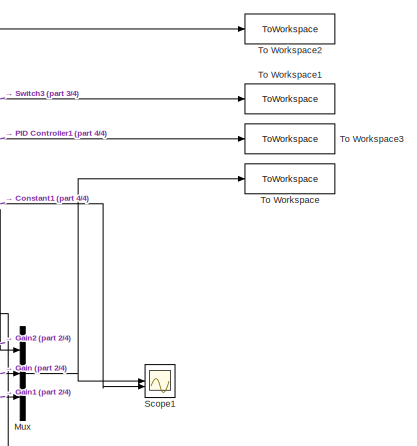
[diagram: root canvas - part 1/4, top right region]
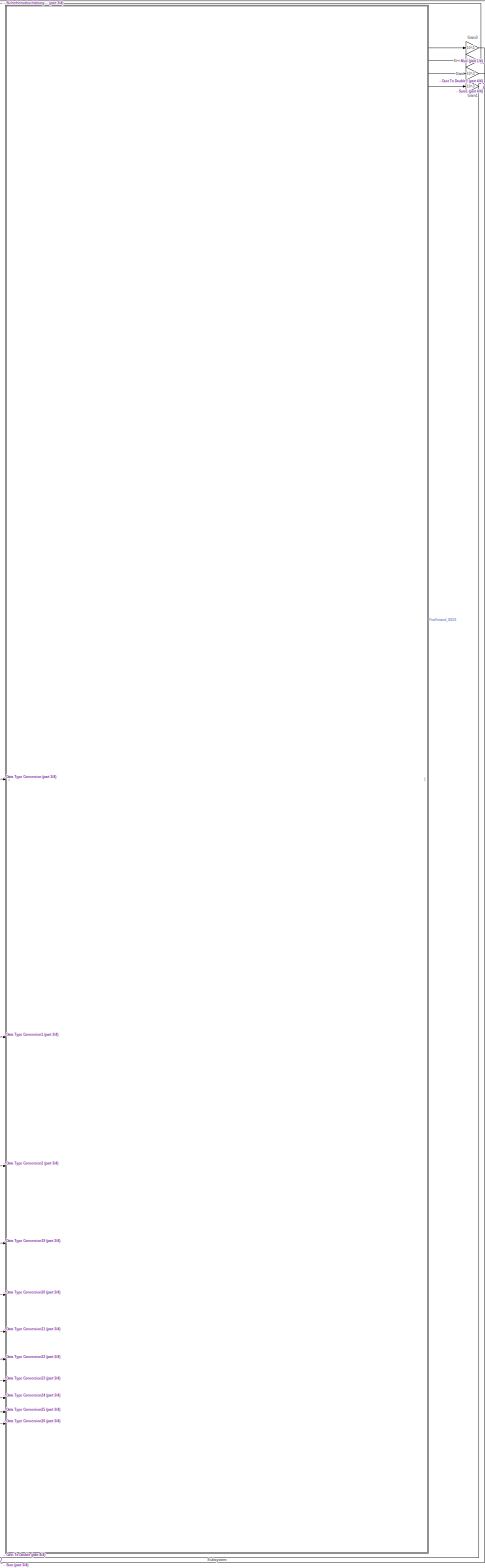
[diagram: root canvas - part 2/4, right side, full height]
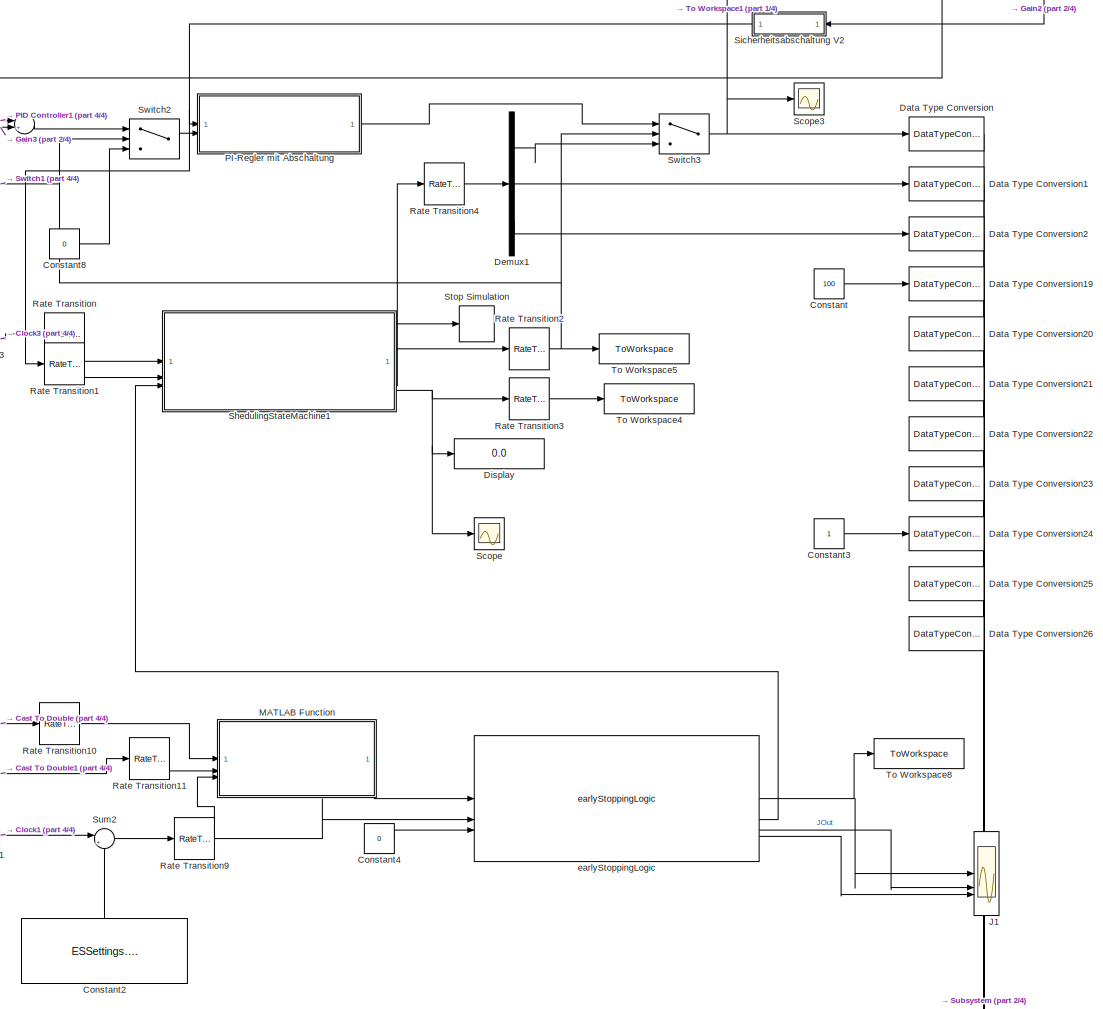
[diagram: root canvas - part 3/4, top left region]
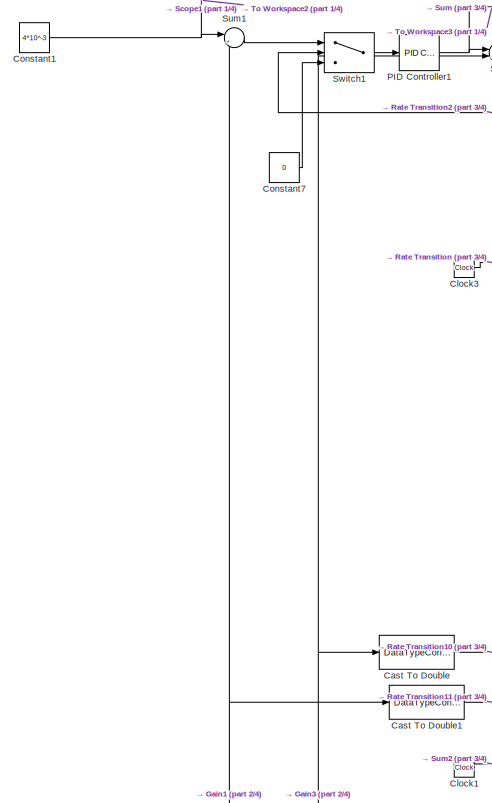
[diagram: root canvas - part 4/4, top left region]
MODEL slx_729de5a73638
KIND model
CONFIG AbsTol = auto
CONFIG EnableMultiTasking = on
CONFIG FixedStep = 0.1
CONFIG InitFcn = Ts = 0.1
CONFIG MaxStep = auto
CONFIG MinStep = auto
CONFIG RelTol = 1e-3
CONFIG SampleTimeConstraint = Unconstrained
CONFIG SolverName = FixedStepAuto
CONFIG StartTime = 0.0
CONFIG StopTime = 250
BLOCK [DataTypeConversion] Cast To Double
  OutDataTypeStr = double
  RndMeth = Floor
  SaturateOnIntegerOverflow = off
BLOCK [DataTypeConversion] Cast To Double1
  OutDataTypeStr = double
  RndMeth = Floor
  SaturateOnIntegerOverflow = off
BLOCK [Clock] Clock1
BLOCK [Clock] Clock3
BLOCK [Constant] Constant
  Value = 100
BLOCK [Constant] Constant1
  Value = 4*10^-3
BLOCK [Constant] Constant2
  NameLocation = right
  Value = ESSettings.TimeOffset
BLOCK [Constant] Constant3
BLOCK [Constant] Constant4
  Value = 0
BLOCK [Constant] Constant7
  Value = 0
BLOCK [Constant] Constant8
  Value = 0
BLOCK [DataTypeConversion] Data Type Conversion
  OutDataTypeStr = single
  RndMeth = Floor
  SaturateOnIntegerOverflow = off
BLOCK [DataTypeConversion] Data Type Conversion1
  OutDataTypeStr = single
  RndMeth = Floor
  SaturateOnIntegerOverflow = off
BLOCK [DataTypeConversion] Data Type Conversion19
  OutDataTypeStr = single
  RndMeth = Floor
  SaturateOnIntegerOverflow = off
BLOCK [DataTypeConversion] Data Type Conversion2
  OutDataTypeStr = single
  RndMeth = Floor
  SaturateOnIntegerOverflow = off
BLOCK [DataTypeConversion] Data Type Conversion20
  OutDataTypeStr = single
  RndMeth = Floor
  SaturateOnIntegerOverflow = off
BLOCK [DataTypeConversion] Data Type Conversion21
  OutDataTypeStr = boolean
  RndMeth = Floor
  SaturateOnIntegerOverflow = off
BLOCK [DataTypeConversion] Data Type Conversion22
  OutDataTypeStr = boolean
  RndMeth = Floor
  SaturateOnIntegerOverflow = off
BLOCK [DataTypeConversion] Data Type Conversion23
  OutDataTypeStr = boolean
  RndMeth = Floor
  SaturateOnIntegerOverflow = off
BLOCK [DataTypeConversion] Data Type Conversion24
  OutDataTypeStr = boolean
  RndMeth = Floor
  SaturateOnIntegerOverflow = off
BLOCK [DataTypeConversion] Data Type Conversion25
  OutDataTypeStr = boolean
  RndMeth = Floor
  SaturateOnIntegerOverflow = off
BLOCK [DataTypeConversion] Data Type Conversion26
  OutDataTypeStr = boolean
  RndMeth = Floor
  SaturateOnIntegerOverflow = off
BLOCK [Demux] Demux1
  Outputs = 3
BLOCK [Display] Display
  Decimation = 1
BLOCK [Gain] Gain
  Gain = 10^-3
BLOCK [Gain] Gain1
  Gain = 10^-3
BLOCK [Gain] Gain2
  Gain = 10^-3
BLOCK [Gain] Gain3
  Gain = 10^-5
BLOCK [Scope] J1
  Floating = off
  NumInputPorts = 3
  ScopeSpecificationString = Simulink.scopes.TimeScopeBlockCfg('CurrentConfiguration', extmgr.ConfigurationSet(extmgr.Configuration('Core','General UI',true),extmgr.Configuration('Core','Source UI',true),extmgr.Configuration('Sources','WiredSimulink',true,'DataLoggingVariableName','ScopeData1'),extmgr.Configuration('Visuals','Time Domain',true,'SerializedDisplays',{struct('MinYLimReal','-0.00382','MaxYLimReal','0.03436','YLab...<+2150ch>
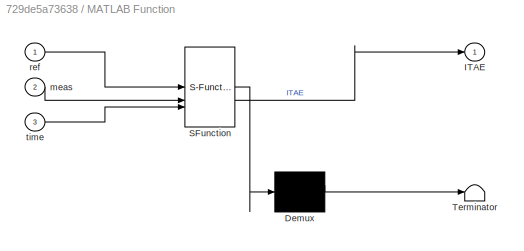
BLOCK [SubSystem] MATLAB Function
  ErrorFcn = Stateflow.Translate.translate
  PermitHierarchicalResolution = ExplicitOnly
  SFBlockType = MATLAB Function
  TreatAsAtomicUnit = on
BLOCK [Demux] MATLAB Function/ Demux 
  Outputs = 1
BLOCK [S-Function] MATLAB Function/ SFunction 
  EnableBusSupport = on
  FunctionName = sf_sfun
  PortCounts = [3 2]
  SFcnIsStateOwnerBlock = off
  SFunctionDeploymentMode = off
  Tag = Stateflow S-Function 1
BLOCK [Terminator] MATLAB Function/ Terminator 
BLOCK [Outport] MATLAB Function/ITAE
BLOCK [Inport] MATLAB Function/meas
  Port = 2
BLOCK [Inport] MATLAB Function/ref
BLOCK [Inport] MATLAB Function/time
  Port = 3
BLOCK [Mux] Mux
  DisplayOption = bar
  Inputs = 3
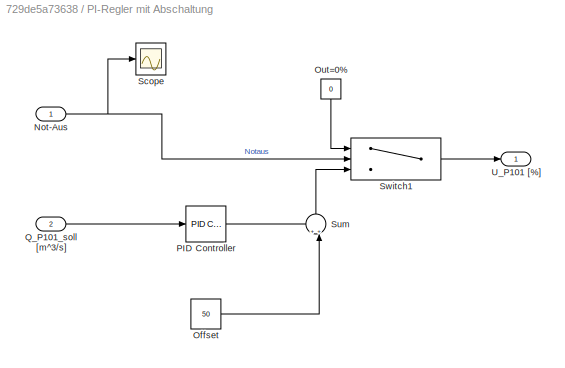
BLOCK [SubSystem] PI-Regler mit Abschaltung
BLOCK [Inport] PI-Regler mit Abschaltung/Not-Aus
BLOCK [Constant] PI-Regler mit Abschaltung/Offset
  Value = 50
BLOCK [Constant] PI-Regler mit Abschaltung/Out=0%
  NameLocation = left
  Value = 0
BLOCK [Reference] PI-Regler mit Abschaltung/PID Controller  REF=pid_lib/PID Controller
  SourceBlock = pid_lib/PID Controller
  SourceType = PID 1dof
BLOCK [Inport] PI-Regler mit Abschaltung/Q_P101_soll [m^3//s]
  Port = 2
BLOCK [Scope] PI-Regler mit Abschaltung/Scope
  Floating = off
  NumInputPorts = 1
  ScopeSpecificationString = Simulink.scopes.TimeScopeBlockCfg('CurrentConfiguration', extmgr.ConfigurationSet(extmgr.Configuration('Core','General UI',true),extmgr.Configuration('Core','Source UI',true),extmgr.Configuration('Sources','WiredSimulink',true,'DataLoggingVariableName','ScopeData3','DataLoggingSaveFormat','StructureWithTime','DataLoggingLimitDataPoints',true,'DataLoggingDecimation','1','DataLoggingDecimateData',tr...<+909ch>
BLOCK [Sum] PI-Regler mit Abschaltung/Sum
  Inputs = ++|
  NameLocation = right
BLOCK [Switch] PI-Regler mit Abschaltung/Switch1
  Threshold = 0.1
BLOCK [Outport] PI-Regler mit Abschaltung/U_P101 [%]
BLOCK [Reference] PID Controller1  REF=slpidlib/PID Controller
  SourceBlock = slpidlib/PID Controller
  SourceType = PID 1dof
BLOCK [RateTransition] Rate Transition
  OutPortSampleTime = 0.1
BLOCK [RateTransition] Rate Transition1
  OutPortSampleTime = 0.1
BLOCK [RateTransition] Rate Transition10
  OutPortSampleTime = ESSettings.t_obj
BLOCK [RateTransition] Rate Transition11
  OutPortSampleTime = ESSettings.t_obj
BLOCK [RateTransition] Rate Transition2
BLOCK [RateTransition] Rate Transition3
BLOCK [RateTransition] Rate Transition4
BLOCK [RateTransition] Rate Transition9
  OutPortSampleTime = ESSettings.t_obj
BLOCK [Scope] Scope
  Floating = off
  NumInputPorts = 1
  ScopeSpecificationString = Simulink.scopes.TimeScopeBlockCfg('CurrentConfiguration', extmgr.ConfigurationSet(extmgr.Configuration('Core','General UI',true),extmgr.Configuration('Core','Source UI',true),extmgr.Configuration('Sources','WiredSimulink',true,'DataLoggingVariableName','ScopeData1'),extmgr.Configuration('Visuals','Time Domain',true,'SerializedDisplays',{struct('MinYLimReal','1.00000','MaxYLimReal','3.00000','YLabe...<+1412ch>
BLOCK [Scope] Scope1
  Floating = off
  NumInputPorts = 2
  ScopeSpecificationString = Simulink.scopes.TimeScopeBlockCfg('CurrentConfiguration', extmgr.ConfigurationSet(extmgr.Configuration('Core','General UI',true),extmgr.Configuration('Core','Source UI',true),extmgr.Configuration('Sources','WiredSimulink',true,'DataLoggingVariableName','ScopeData4'),extmgr.Configuration('Visuals','Time Domain',true,'SerializedDisplays',{struct('MinYLimReal','0.00353','MaxYLimReal','0.00736','YLabe...<+1436ch>
BLOCK [Scope] Scope3
  Floating = off
  NumInputPorts = 1
  ScopeSpecificationString = Simulink.scopes.TimeScopeBlockCfg('CurrentConfiguration', extmgr.ConfigurationSet(extmgr.Configuration('Core','General UI',true),extmgr.Configuration('Core','Source UI',true),extmgr.Configuration('Sources','WiredSimulink',true,'DataLoggingVariableName','ScopeData2','DataLoggingSaveFormat','StructureWithTime','DataLoggingDecimation','1','DataLoggingDecimateData',true),extmgr.Configuration('Visuals'...<+1722ch>
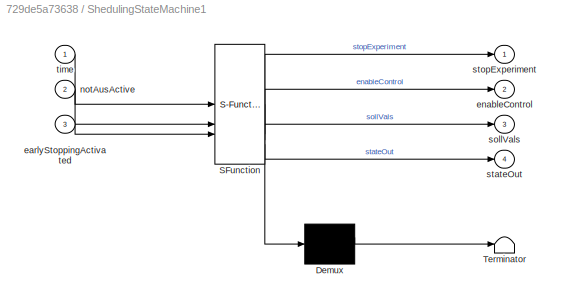
BLOCK [SubSystem] ShedulingStateMachine1
  ErrorFcn = Stateflow.Translate.translate
  PermitHierarchicalResolution = ExplicitOnly
  SFBlockType = MATLAB Function
  TreatAsAtomicUnit = on
BLOCK [Demux] ShedulingStateMachine1/ Demux 
  Outputs = 1
BLOCK [S-Function] ShedulingStateMachine1/ SFunction 
  EnableBusSupport = on
  FunctionName = sf_sfun
  Parameters = Parameters,V101_ref
  PortCounts = [3 5]
  SFcnIsStateOwnerBlock = off
  SFunctionDeploymentMode = off
  Tag = Stateflow S-Function 3
BLOCK [Terminator] ShedulingStateMachine1/ Terminator 
BLOCK [Inport] ShedulingStateMachine1/earlyStoppingActivated
  Port = 3
BLOCK [Outport] ShedulingStateMachine1/enableControl
  Port = 2
BLOCK [Inport] ShedulingStateMachine1/notAusActive
  Port = 2
BLOCK [Outport] ShedulingStateMachine1/sollVals
  Port = 3
BLOCK [Outport] ShedulingStateMachine1/stateOut
  Port = 4
BLOCK [Outport] ShedulingStateMachine1/stopExperiment
BLOCK [Inport] ShedulingStateMachine1/time
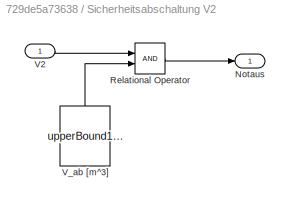
BLOCK [SubSystem] Sicherheitsabschaltung V2
BLOCK [Outport] Sicherheitsabschaltung V2/Notaus
BLOCK [RelationalOperator] Sicherheitsabschaltung V2/Relational Operator
  InputSameDT = off
BLOCK [Inport] Sicherheitsabschaltung V2/V2
BLOCK [Constant] Sicherheitsabschaltung V2/V_ab [m^3]
  NameLocation = left
  Value = upperBound1stank
BLOCK [Stop] Stop Simulation
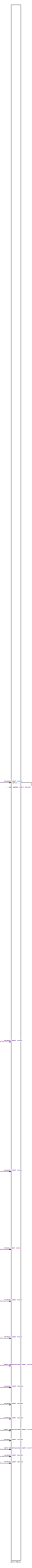
[diagram: Subsystem - part 1/22, right side, full height]
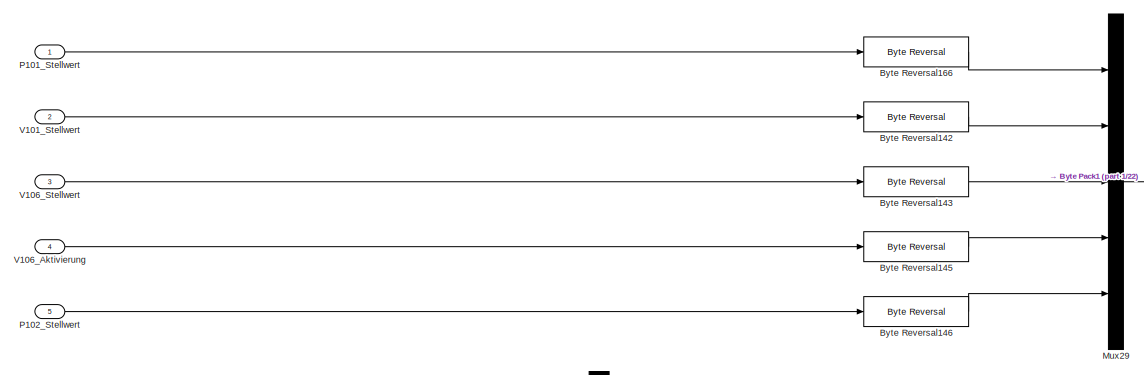
[diagram: Subsystem - part 2/22, top right region]
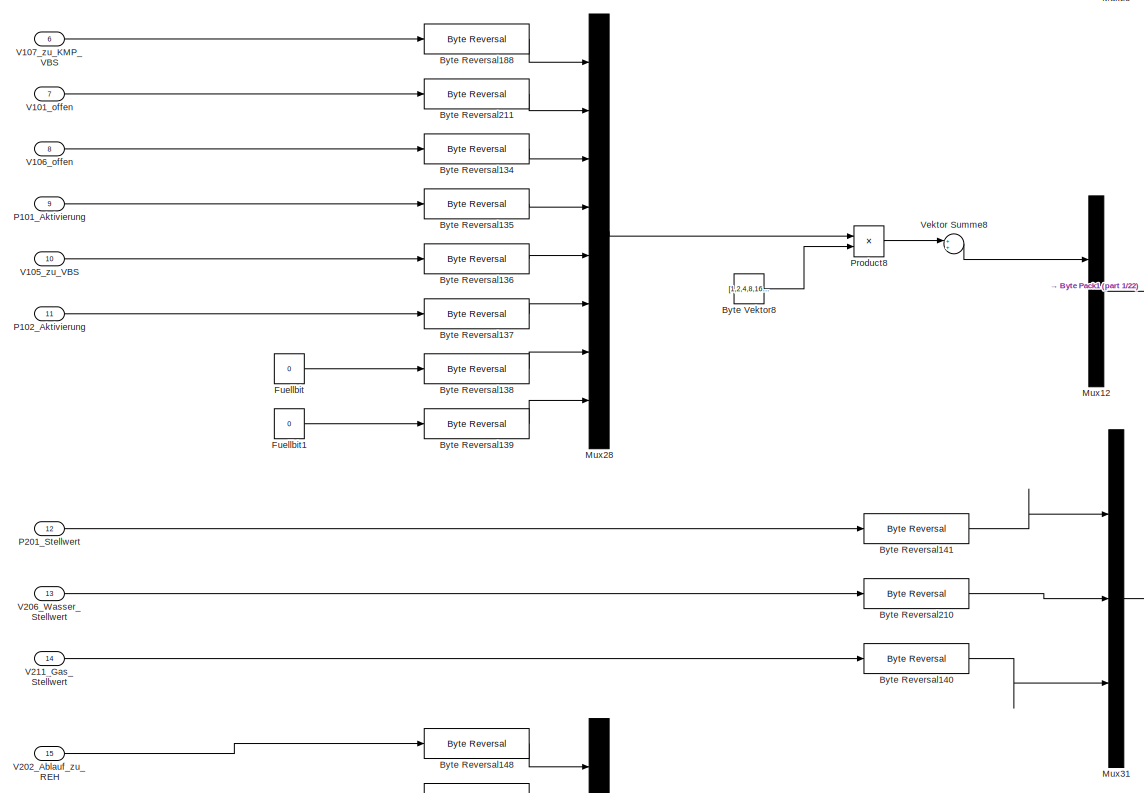
[diagram: Subsystem - part 3/22, top right region]
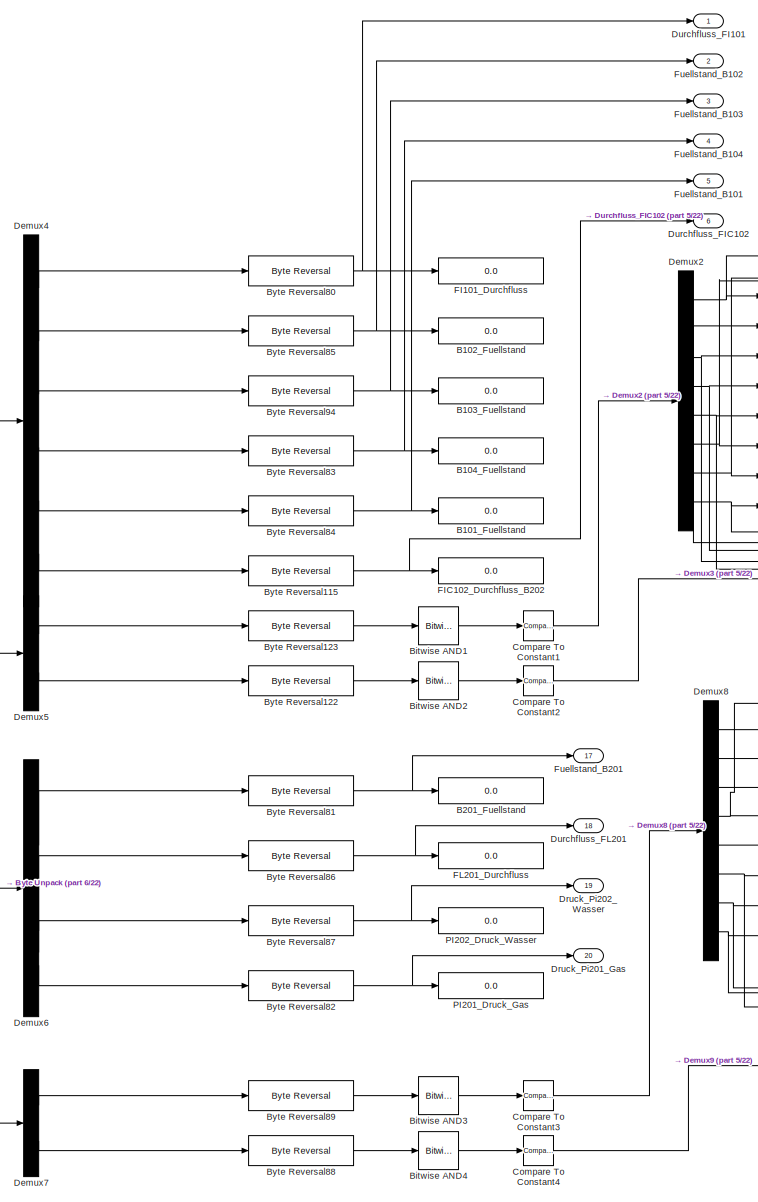
[diagram: Subsystem - part 4/22, top left region]
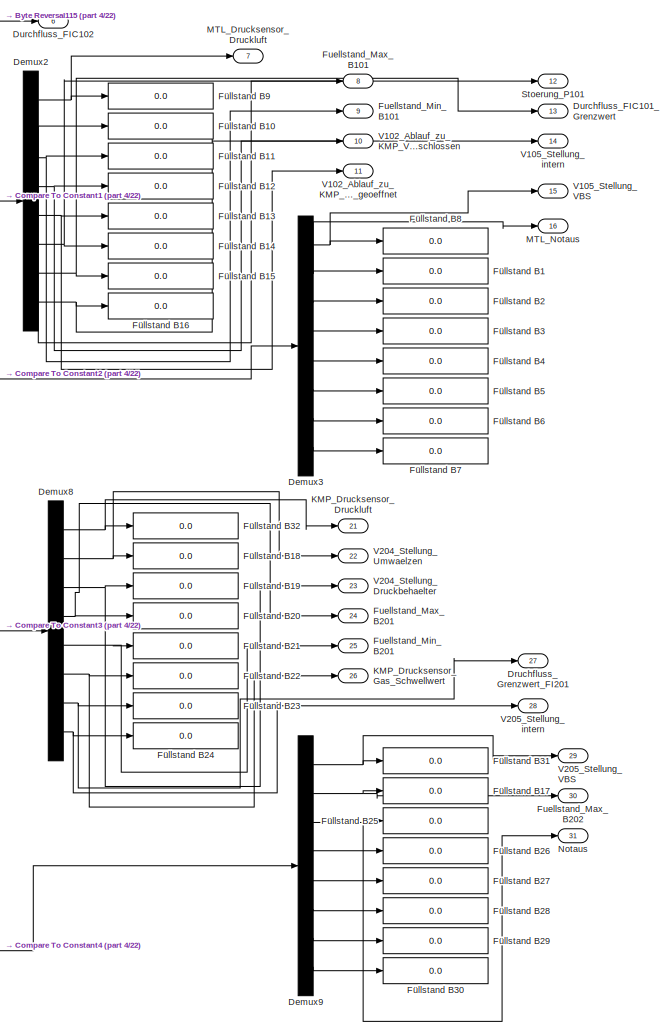
[diagram: Subsystem - part 5/22, top left region]
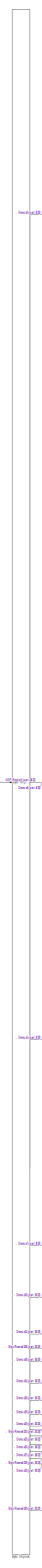
[diagram: Subsystem - part 6/22, left side, full height]
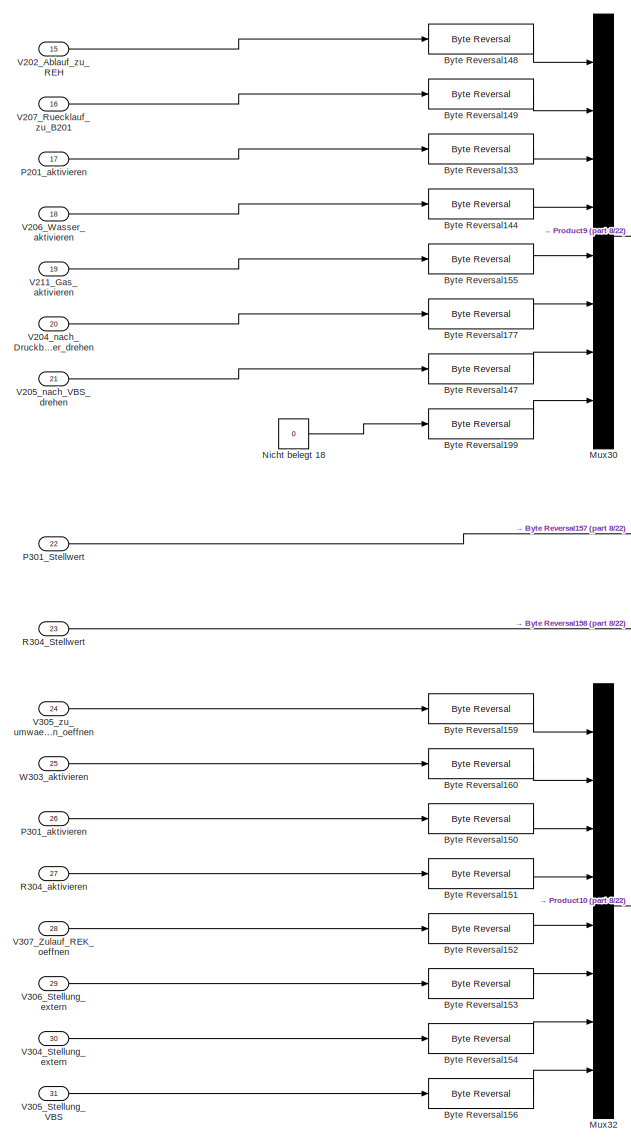
[diagram: Subsystem - part 7/22, top right region]
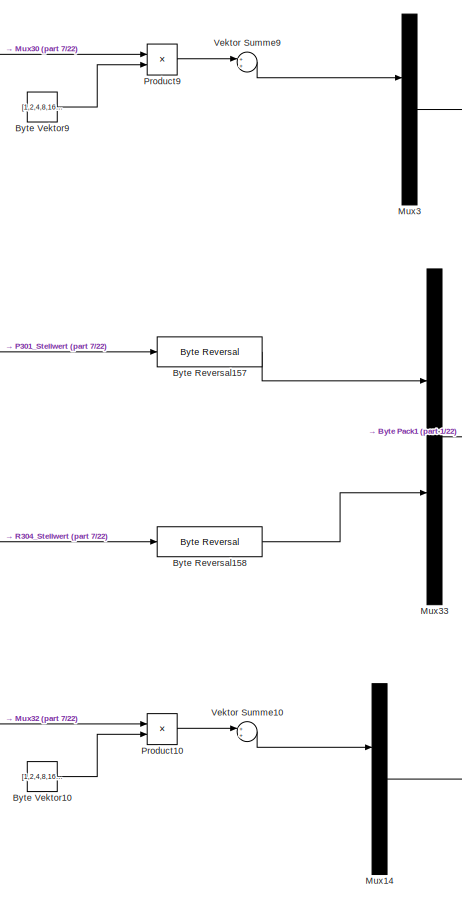
[diagram: Subsystem - part 8/22, top right region]
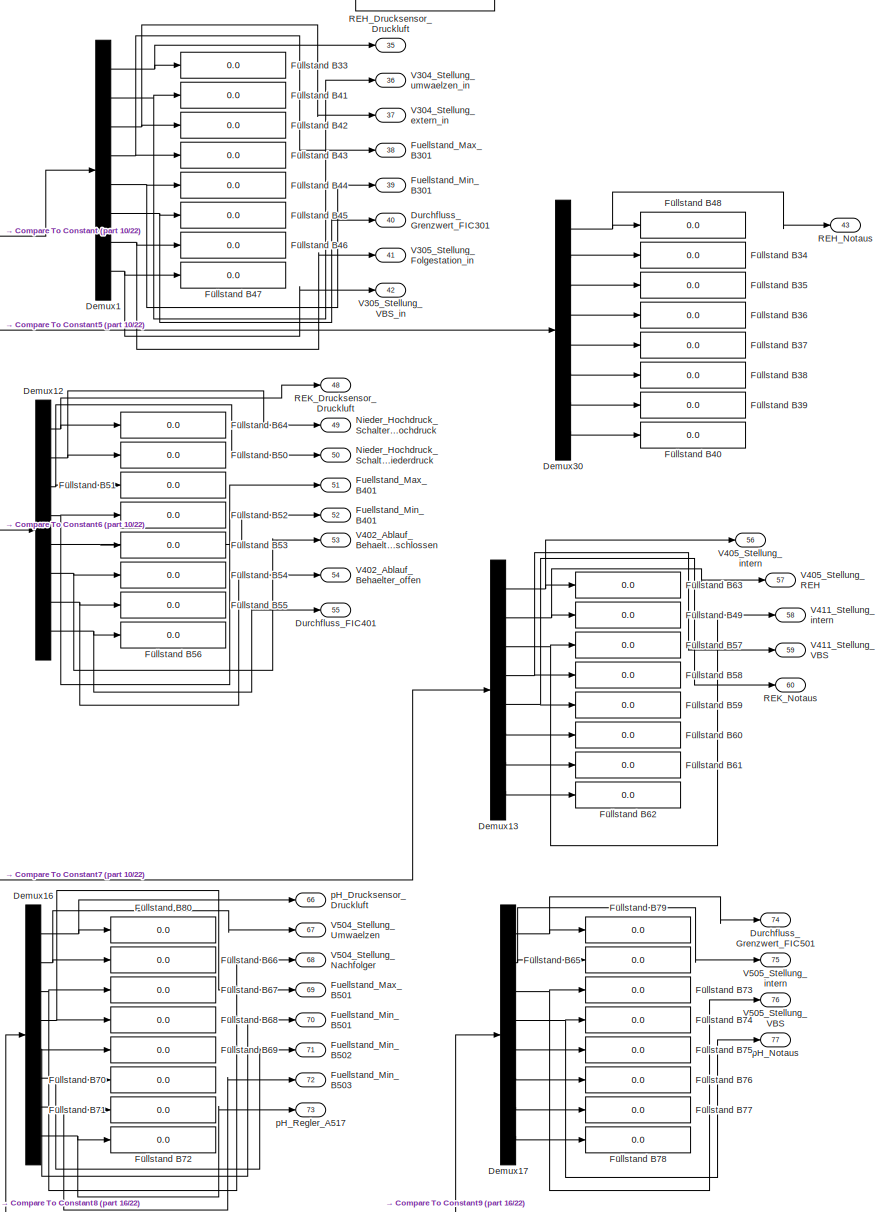
[diagram: Subsystem - part 9/22, middle left region]
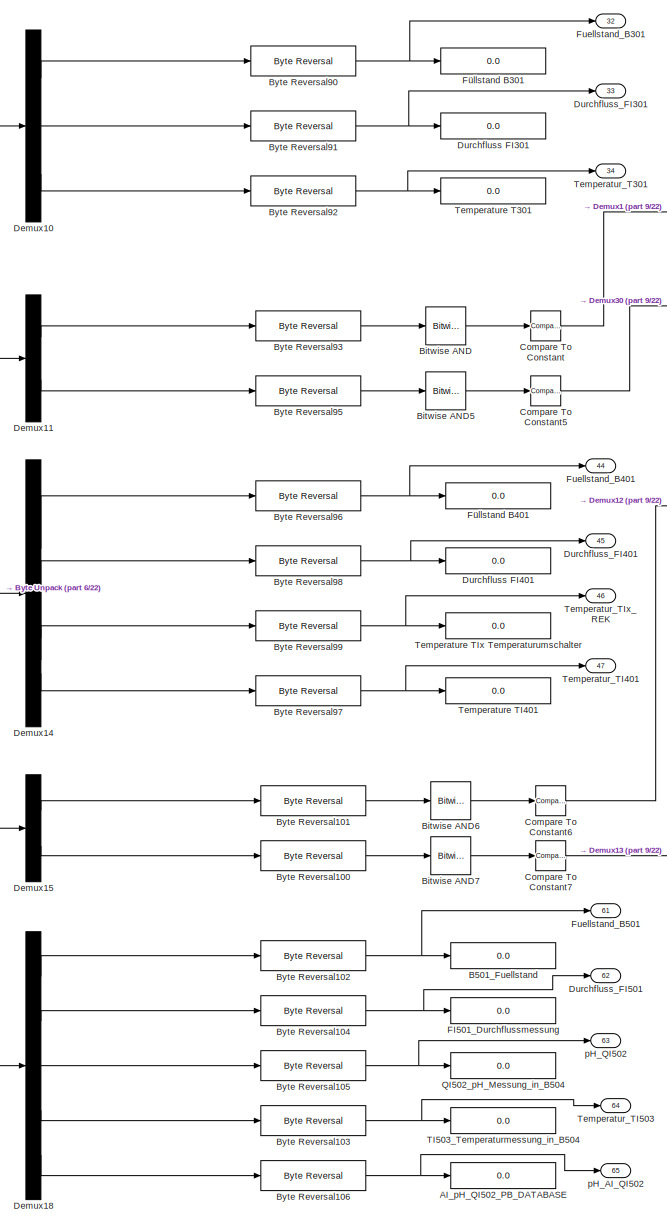
[diagram: Subsystem - part 10/22, middle left region]
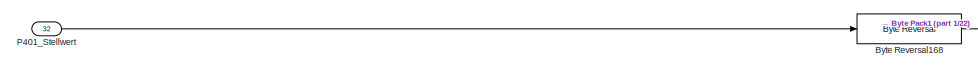
[diagram: Subsystem - part 11/22, middle right region]
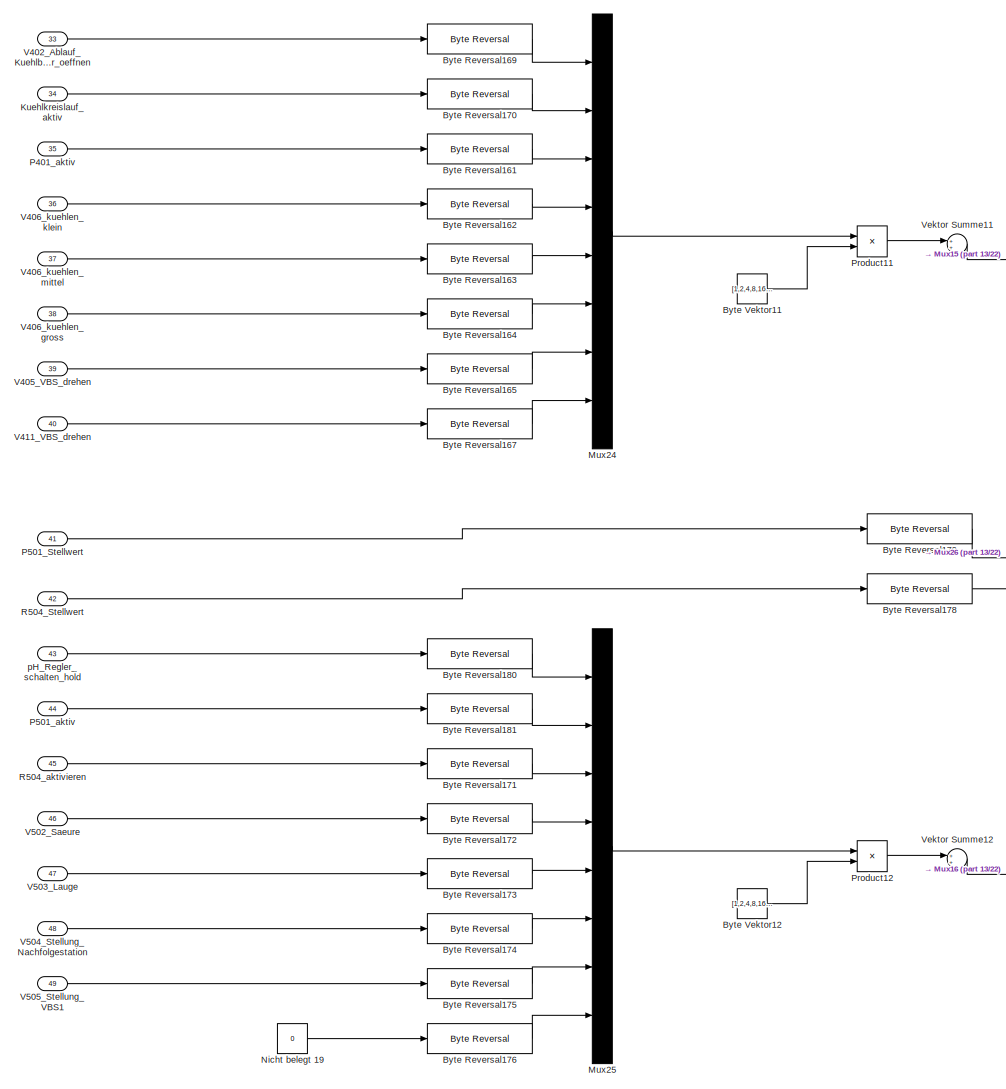
[diagram: Subsystem - part 12/22, middle right region]
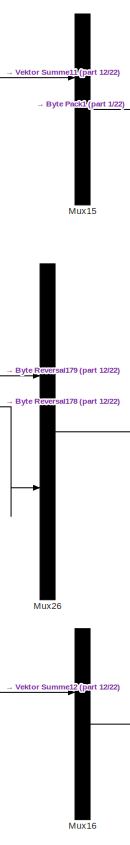
[diagram: Subsystem - part 13/22, middle right region]
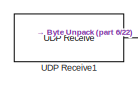
[diagram: Subsystem - part 14/22, middle left region]
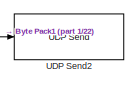
[diagram: Subsystem - part 15/22, middle right region]
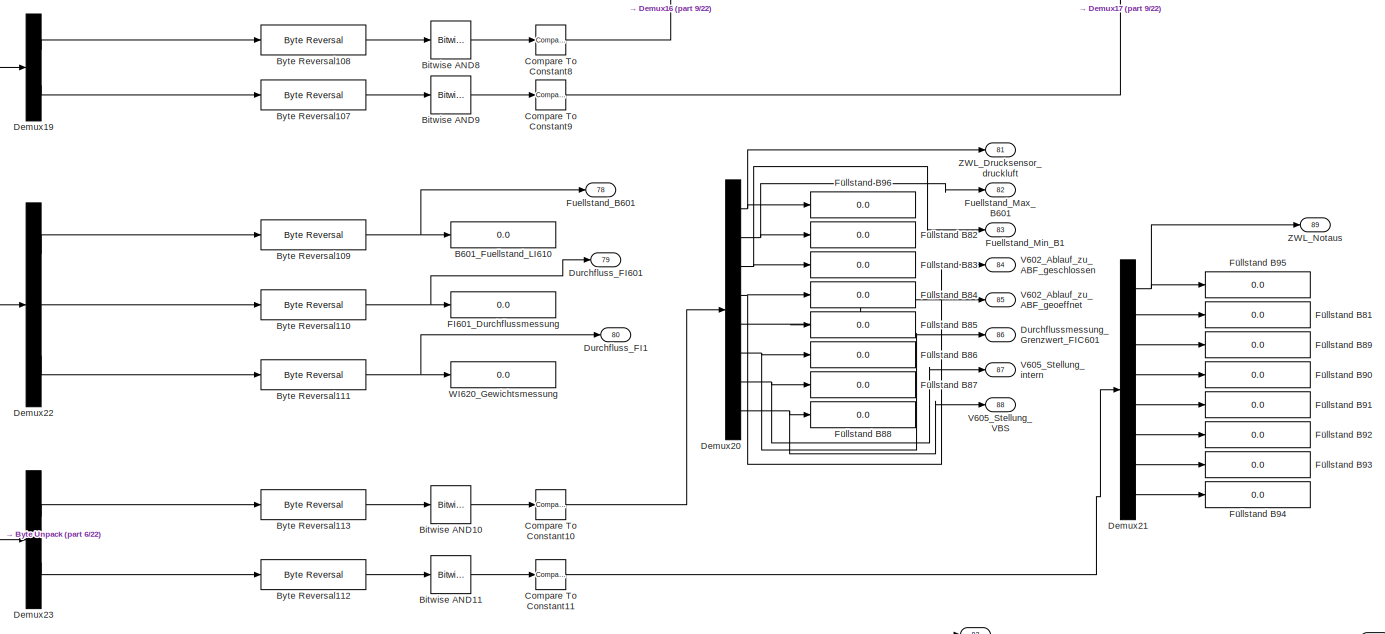
[diagram: Subsystem - part 16/22, middle left region]
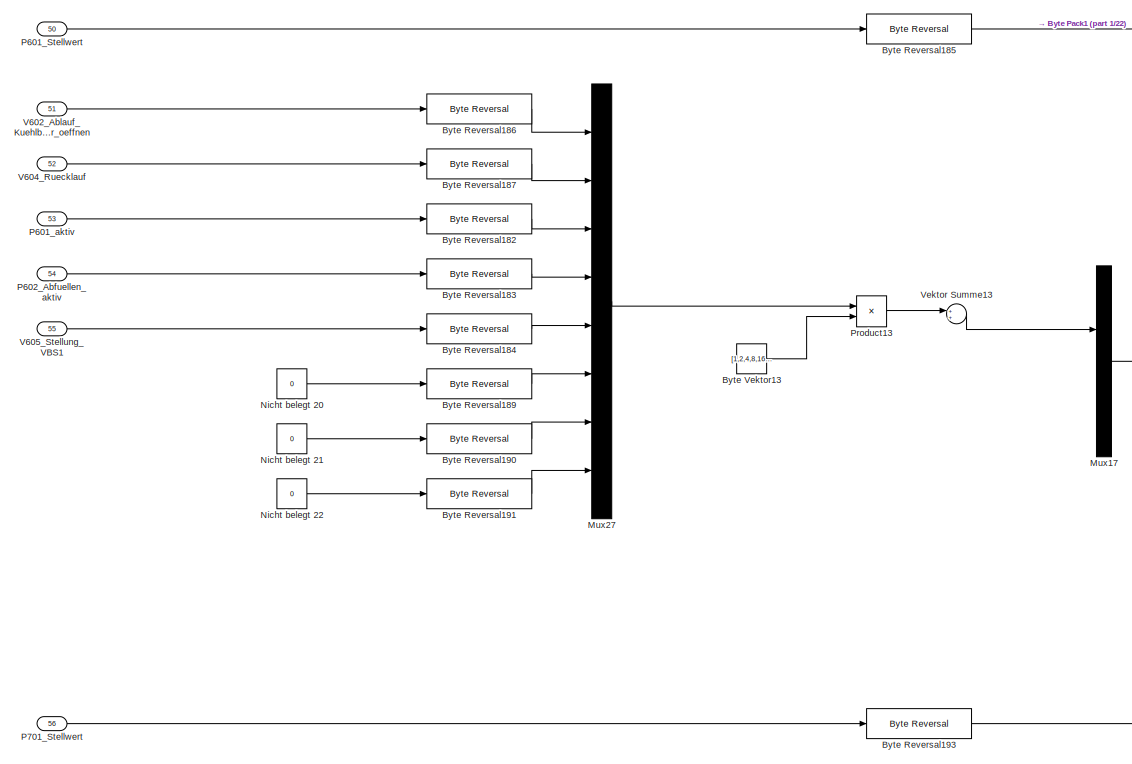
[diagram: Subsystem - part 17/22, bottom right region]
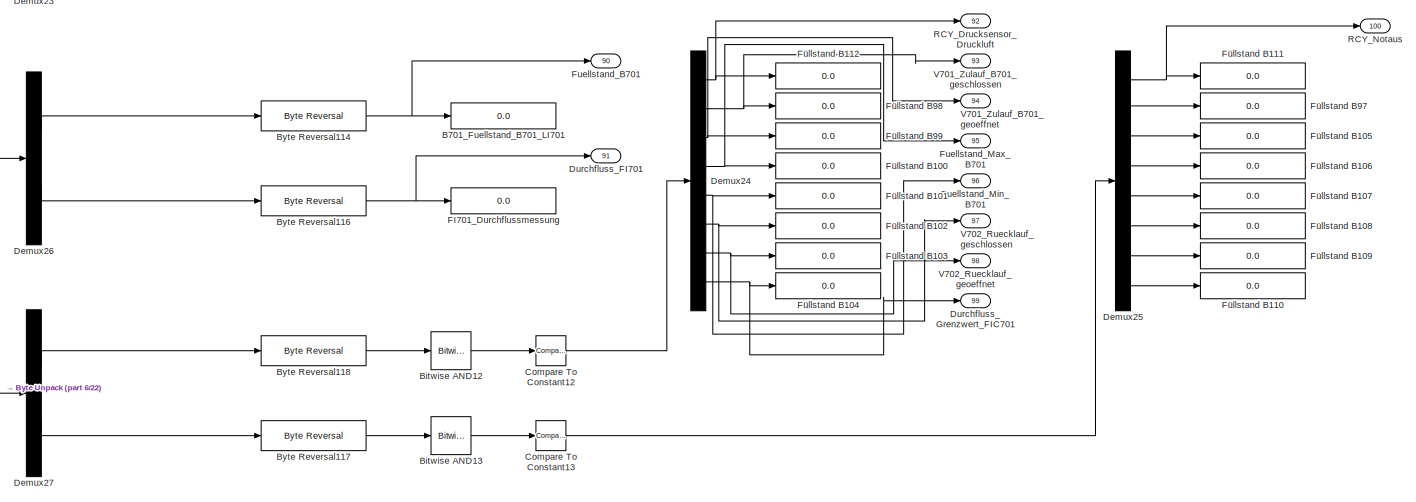
[diagram: Subsystem - part 18/22, bottom left region]
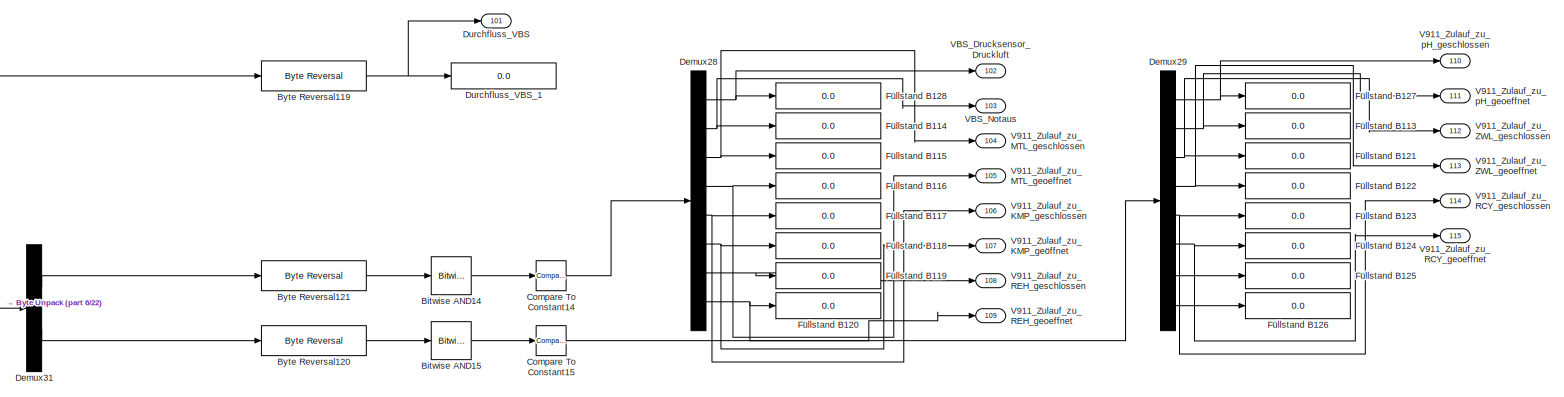
[diagram: Subsystem - part 19/22, bottom left region]
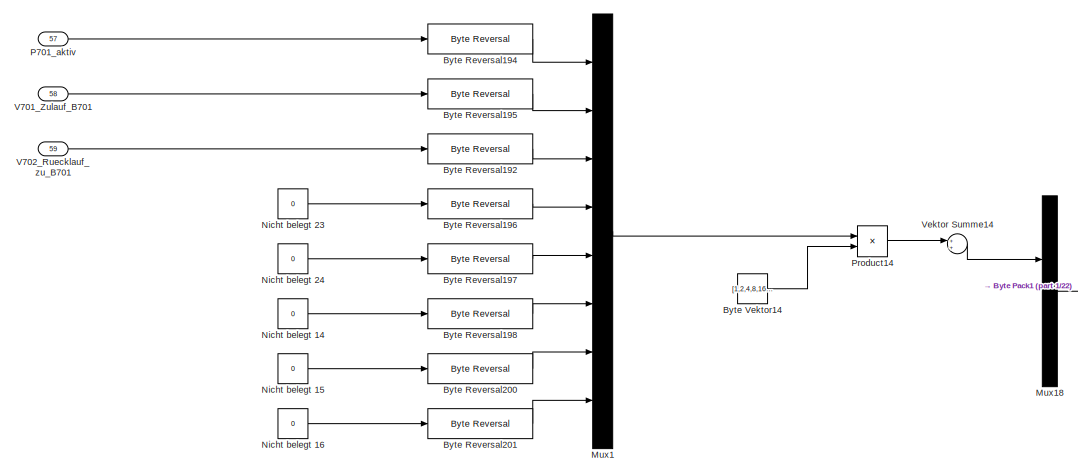
[diagram: Subsystem - part 20/22, bottom right region]
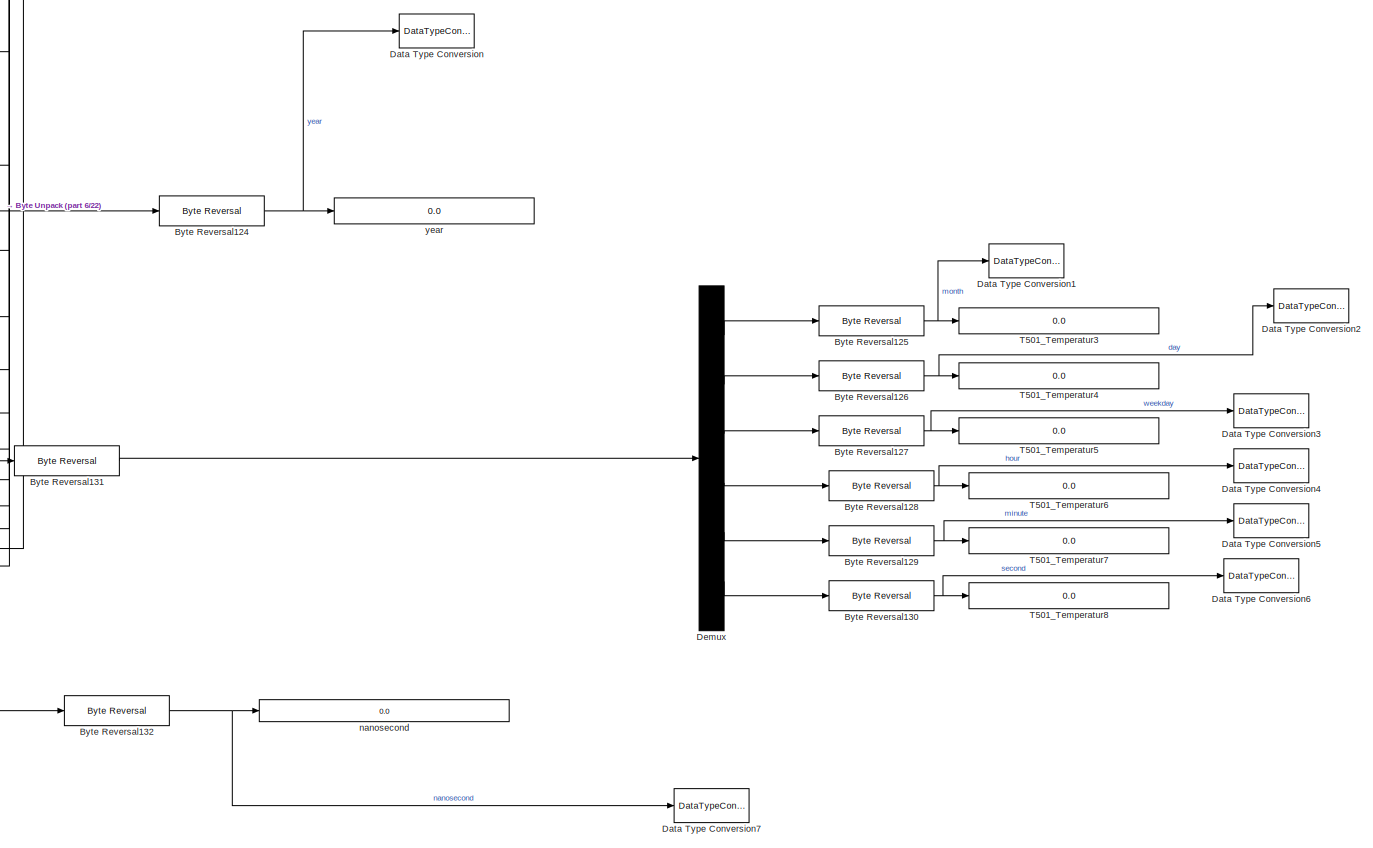
[diagram: Subsystem - part 21/22, bottom left region]
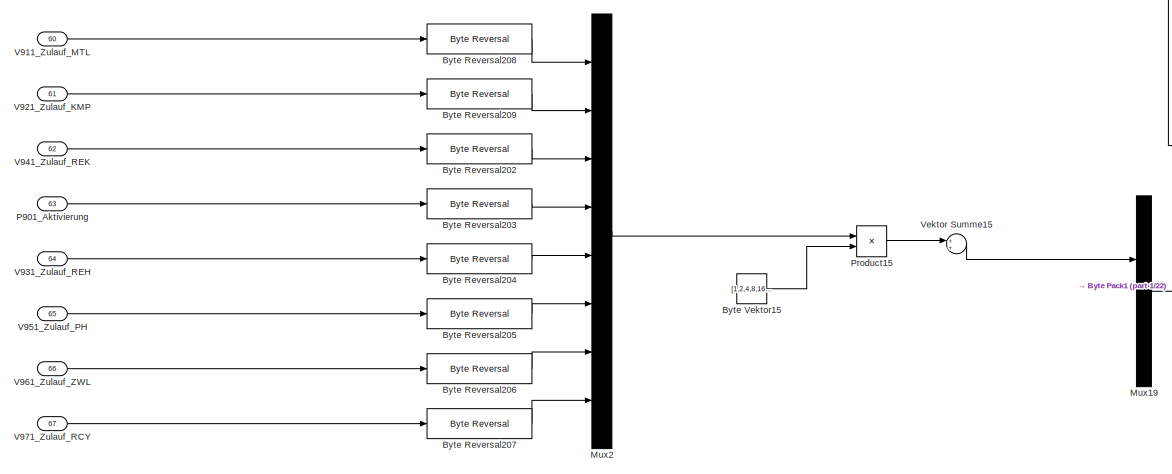
[diagram: Subsystem - part 22/22, bottom right region]
BLOCK [SubSystem] Subsystem
BLOCK [Display] Subsystem/AI_pH_QI502_PB_DATABASE
  Decimation = 1
BLOCK [Display] Subsystem/B101_Fuellstand
  Decimation = 1
BLOCK [Display] Subsystem/B102_Fuellstand
  Decimation = 1
BLOCK [Display] Subsystem/B103_Fuellstand
  Decimation = 1
BLOCK [Display] Subsystem/B104_Fuellstand
  Decimation = 1
BLOCK [Display] Subsystem/B201_Fuellstand
  Decimation = 1
BLOCK [Display] Subsystem/B501_Fuellstand
  Decimation = 1
BLOCK [Display] Subsystem/B601_Fuellstand_LI610
  Decimation = 1
BLOCK [Display] Subsystem/B701_Fuellstand_B701_LI701
  Decimation = 1
BLOCK [Reference] Subsystem/Bitwise AND  REF=simulink/Logic and Bit
Operations/Bitwise
Operator
  SourceBlock = simulink/Logic and Bit\nOperations/Bitwise\nOperator
  SourceType = Bitwise Operator
BLOCK [Reference] Subsystem/Bitwise AND1  REF=simulink/Logic and Bit
Operations/Bitwise
Operator
  SourceBlock = simulink/Logic and Bit\nOperations/Bitwise\nOperator
  SourceType = Bitwise Operator
BLOCK [Reference] Subsystem/Bitwise AND10  REF=simulink/Logic and Bit
Operations/Bitwise
Operator
  SourceBlock = simulink/Logic and Bit\nOperations/Bitwise\nOperator
  SourceType = Bitwise Operator
BLOCK [Reference] Subsystem/Bitwise AND11  REF=simulink/Logic and Bit
Operations/Bitwise
Operator
  SourceBlock = simulink/Logic and Bit\nOperations/Bitwise\nOperator
  SourceType = Bitwise Operator
BLOCK [Reference] Subsystem/Bitwise AND12  REF=simulink/Logic and Bit
Operations/Bitwise
Operator
  SourceBlock = simulink/Logic and Bit\nOperations/Bitwise\nOperator
  SourceType = Bitwise Operator
BLOCK [Reference] Subsystem/Bitwise AND13  REF=simulink/Logic and Bit
Operations/Bitwise
Operator
  SourceBlock = simulink/Logic and Bit\nOperations/Bitwise\nOperator
  SourceType = Bitwise Operator
BLOCK [Reference] Subsystem/Bitwise AND14  REF=simulink/Logic and Bit
Operations/Bitwise
Operator
  SourceBlock = simulink/Logic and Bit\nOperations/Bitwise\nOperator
  SourceType = Bitwise Operator
BLOCK [Reference] Subsystem/Bitwise AND15  REF=simulink/Logic and Bit
Operations/Bitwise
Operator
  SourceBlock = simulink/Logic and Bit\nOperations/Bitwise\nOperator
  SourceType = Bitwise Operator
BLOCK [Reference] Subsystem/Bitwise AND2  REF=simulink/Logic and Bit
Operations/Bitwise
Operator
  SourceBlock = simulink/Logic and Bit\nOperations/Bitwise\nOperator
  SourceType = Bitwise Operator
BLOCK [Reference] Subsystem/Bitwise AND3  REF=simulink/Logic and Bit
Operations/Bitwise
Operator
  SourceBlock = simulink/Logic and Bit\nOperations/Bitwise\nOperator
  SourceType = Bitwise Operator
BLOCK [Reference] Subsystem/Bitwise AND4  REF=simulink/Logic and Bit
Operations/Bitwise
Operator
  SourceBlock = simulink/Logic and Bit\nOperations/Bitwise\nOperator
  SourceType = Bitwise Operator
BLOCK [Reference] Subsystem/Bitwise AND5  REF=simulink/Logic and Bit
Operations/Bitwise
Operator
  SourceBlock = simulink/Logic and Bit\nOperations/Bitwise\nOperator
  SourceType = Bitwise Operator
BLOCK [Reference] Subsystem/Bitwise AND6  REF=simulink/Logic and Bit
Operations/Bitwise
Operator
  SourceBlock = simulink/Logic and Bit\nOperations/Bitwise\nOperator
  SourceType = Bitwise Operator
BLOCK [Reference] Subsystem/Bitwise AND7  REF=simulink/Logic and Bit
Operations/Bitwise
Operator
  SourceBlock = simulink/Logic and Bit\nOperations/Bitwise\nOperator
  SourceType = Bitwise Operator
BLOCK [Reference] Subsystem/Bitwise AND8  REF=simulink/Logic and Bit
Operations/Bitwise
Operator
  SourceBlock = simulink/Logic and Bit\nOperations/Bitwise\nOperator
  SourceType = Bitwise Operator
BLOCK [Reference] Subsystem/Bitwise AND9  REF=simulink/Logic and Bit
Operations/Bitwise
Operator
  SourceBlock = simulink/Logic and Bit\nOperations/Bitwise\nOperator
  SourceType = Bitwise Operator
BLOCK [Reference] Subsystem/Byte Pack1  REF=etargetslib/Byte Pack
  SourceBlock = etargetslib/Byte Pack
  SourceType = Byte pack
BLOCK [Reference] Subsystem/Byte Reversal100  REF=etargetslib/Byte Reversal
  SourceBlock = etargetslib/Byte Reversal
  SourceType = Byte Reversal
BLOCK [Reference] Subsystem/Byte Reversal101  REF=etargetslib/Byte Reversal
  SourceBlock = etargetslib/Byte Reversal
  SourceType = Byte Reversal
BLOCK [Reference] Subsystem/Byte Reversal102  REF=etargetslib/Byte Reversal
  SourceBlock = etargetslib/Byte Reversal
  SourceType = Byte Reversal
BLOCK [Reference] Subsystem/Byte Reversal103  REF=etargetslib/Byte Reversal
  SourceBlock = etargetslib/Byte Reversal
  SourceType = Byte Reversal
BLOCK [Reference] Subsystem/Byte Reversal104  REF=etargetslib/Byte Reversal
  SourceBlock = etargetslib/Byte Reversal
  SourceType = Byte Reversal
BLOCK [Reference] Subsystem/Byte Reversal105  REF=etargetslib/Byte Reversal
  SourceBlock = etargetslib/Byte Reversal
  SourceType = Byte Reversal
BLOCK [Reference] Subsystem/Byte Reversal106  REF=etargetslib/Byte Reversal
  SourceBlock = etargetslib/Byte Reversal
  SourceType = Byte Reversal
BLOCK [Reference] Subsystem/Byte Reversal107  REF=etargetslib/Byte Reversal
  SourceBlock = etargetslib/Byte Reversal
  SourceType = Byte Reversal
BLOCK [Reference] Subsystem/Byte Reversal108  REF=etargetslib/Byte Reversal
  SourceBlock = etargetslib/Byte Reversal
  SourceType = Byte Reversal
BLOCK [Reference] Subsystem/Byte Reversal109  REF=etargetslib/Byte Reversal
  SourceBlock = etargetslib/Byte Reversal
  SourceType = Byte Reversal
BLOCK [Reference] Subsystem/Byte Reversal110  REF=etargetslib/Byte Reversal
  SourceBlock = etargetslib/Byte Reversal
  SourceType = Byte Reversal
BLOCK [Reference] Subsystem/Byte Reversal111  REF=etargetslib/Byte Reversal
  SourceBlock = etargetslib/Byte Reversal
  SourceType = Byte Reversal
BLOCK [Reference] Subsystem/Byte Reversal112  REF=etargetslib/Byte Reversal
  SourceBlock = etargetslib/Byte Reversal
  SourceType = Byte Reversal
BLOCK [Reference] Subsystem/Byte Reversal113  REF=etargetslib/Byte Reversal
  SourceBlock = etargetslib/Byte Reversal
  SourceType = Byte Reversal
BLOCK [Reference] Subsystem/Byte Reversal114  REF=etargetslib/Byte Reversal
  SourceBlock = etargetslib/Byte Reversal
  SourceType = Byte Reversal
BLOCK [Reference] Subsystem/Byte Reversal115  REF=etargetslib/Byte Reversal
  SourceBlock = etargetslib/Byte Reversal
  SourceType = Byte Reversal
BLOCK [Reference] Subsystem/Byte Reversal116  REF=etargetslib/Byte Reversal
  SourceBlock = etargetslib/Byte Reversal
  SourceType = Byte Reversal
BLOCK [Reference] Subsystem/Byte Reversal117  REF=etargetslib/Byte Reversal
  SourceBlock = etargetslib/Byte Reversal
  SourceType = Byte Reversal
BLOCK [Reference] Subsystem/Byte Reversal118  REF=etargetslib/Byte Reversal
  SourceBlock = etargetslib/Byte Reversal
  SourceType = Byte Reversal
BLOCK [Reference] Subsystem/Byte Reversal119  REF=etargetslib/Byte Reversal
  SourceBlock = etargetslib/Byte Reversal
  SourceType = Byte Reversal
BLOCK [Reference] Subsystem/Byte Reversal120  REF=etargetslib/Byte Reversal
  SourceBlock = etargetslib/Byte Reversal
  SourceType = Byte Reversal
BLOCK [Reference] Subsystem/Byte Reversal121  REF=etargetslib/Byte Reversal
  SourceBlock = etargetslib/Byte Reversal
  SourceType = Byte Reversal
BLOCK [Reference] Subsystem/Byte Reversal122  REF=etargetslib/Byte Reversal
  SourceBlock = etargetslib/Byte Reversal
  SourceType = Byte Reversal
BLOCK [Reference] Subsystem/Byte Reversal123  REF=etargetslib/Byte Reversal
  SourceBlock = etargetslib/Byte Reversal
  SourceType = Byte Reversal
BLOCK [Reference] Subsystem/Byte Reversal124  REF=etargetslib/Byte Reversal
  SourceBlock = etargetslib/Byte Reversal
  SourceType = Byte Reversal
BLOCK [Reference] Subsystem/Byte Reversal125  REF=etargetslib/Byte Reversal
  SourceBlock = etargetslib/Byte Reversal
  SourceType = Byte Reversal
BLOCK [Reference] Subsystem/Byte Reversal126  REF=etargetslib/Byte Reversal
  SourceBlock = etargetslib/Byte Reversal
  SourceType = Byte Reversal
BLOCK [Reference] Subsystem/Byte Reversal127  REF=etargetslib/Byte Reversal
  SourceBlock = etargetslib/Byte Reversal
  SourceType = Byte Reversal
BLOCK [Reference] Subsystem/Byte Reversal128  REF=etargetslib/Byte Reversal
  SourceBlock = etargetslib/Byte Reversal
  SourceType = Byte Reversal
BLOCK [Reference] Subsystem/Byte Reversal129  REF=etargetslib/Byte Reversal
  SourceBlock = etargetslib/Byte Reversal
  SourceType = Byte Reversal
BLOCK [Reference] Subsystem/Byte Reversal130  REF=etargetslib/Byte Reversal
  SourceBlock = etargetslib/Byte Reversal
  SourceType = Byte Reversal
BLOCK [Reference] Subsystem/Byte Reversal131  REF=etargetslib/Byte Reversal
  SourceBlock = etargetslib/Byte Reversal
  SourceType = Byte Reversal
BLOCK [Reference] Subsystem/Byte Reversal132  REF=etargetslib/Byte Reversal
  SourceBlock = etargetslib/Byte Reversal
  SourceType = Byte Reversal
BLOCK [Reference] Subsystem/Byte Reversal133  REF=etargetslib/Byte Reversal
  SourceBlock = etargetslib/Byte Reversal
  SourceType = Byte Reversal
BLOCK [Reference] Subsystem/Byte Reversal134  REF=etargetslib/Byte Reversal
  SourceBlock = etargetslib/Byte Reversal
  SourceType = Byte Reversal
BLOCK [Reference] Subsystem/Byte Reversal135  REF=etargetslib/Byte Reversal
  SourceBlock = etargetslib/Byte Reversal
  SourceType = Byte Reversal
BLOCK [Reference] Subsystem/Byte Reversal136  REF=etargetslib/Byte Reversal
  SourceBlock = etargetslib/Byte Reversal
  SourceType = Byte Reversal
BLOCK [Reference] Subsystem/Byte Reversal137  REF=etargetslib/Byte Reversal
  SourceBlock = etargetslib/Byte Reversal
  SourceType = Byte Reversal
BLOCK [Reference] Subsystem/Byte Reversal138  REF=etargetslib/Byte Reversal
  SourceBlock = etargetslib/Byte Reversal
  SourceType = Byte Reversal
BLOCK [Reference] Subsystem/Byte Reversal139  REF=etargetslib/Byte Reversal
  SourceBlock = etargetslib/Byte Reversal
  SourceType = Byte Reversal
BLOCK [Reference] Subsystem/Byte Reversal140  REF=etargetslib/Byte Reversal
  SourceBlock = etargetslib/Byte Reversal
  SourceType = Byte Reversal
BLOCK [Reference] Subsystem/Byte Reversal141  REF=etargetslib/Byte Reversal
  SourceBlock = etargetslib/Byte Reversal
  SourceType = Byte Reversal
BLOCK [Reference] Subsystem/Byte Reversal142  REF=etargetslib/Byte Reversal
  SourceBlock = etargetslib/Byte Reversal
  SourceType = Byte Reversal
BLOCK [Reference] Subsystem/Byte Reversal143  REF=etargetslib/Byte Reversal
  SourceBlock = etargetslib/Byte Reversal
  SourceType = Byte Reversal
BLOCK [Reference] Subsystem/Byte Reversal144  REF=etargetslib/Byte Reversal
  SourceBlock = etargetslib/Byte Reversal
  SourceType = Byte Reversal
BLOCK [Reference] Subsystem/Byte Reversal145  REF=etargetslib/Byte Reversal
  SourceBlock = etargetslib/Byte Reversal
  SourceType = Byte Reversal
BLOCK [Reference] Subsystem/Byte Reversal146  REF=etargetslib/Byte Reversal
  SourceBlock = etargetslib/Byte Reversal
  SourceType = Byte Reversal
BLOCK [Reference] Subsystem/Byte Reversal147  REF=etargetslib/Byte Reversal
  SourceBlock = etargetslib/Byte Reversal
  SourceType = Byte Reversal
BLOCK [Reference] Subsystem/Byte Reversal148  REF=etargetslib/Byte Reversal
  SourceBlock = etargetslib/Byte Reversal
  SourceType = Byte Reversal
BLOCK [Reference] Subsystem/Byte Reversal149  REF=etargetslib/Byte Reversal
  SourceBlock = etargetslib/Byte Reversal
  SourceType = Byte Reversal
BLOCK [Reference] Subsystem/Byte Reversal150  REF=etargetslib/Byte Reversal
  SourceBlock = etargetslib/Byte Reversal
  SourceType = Byte Reversal
BLOCK [Reference] Subsystem/Byte Reversal151  REF=etargetslib/Byte Reversal
  SourceBlock = etargetslib/Byte Reversal
  SourceType = Byte Reversal
BLOCK [Reference] Subsystem/Byte Reversal152  REF=etargetslib/Byte Reversal
  SourceBlock = etargetslib/Byte Reversal
  SourceType = Byte Reversal
BLOCK [Reference] Subsystem/Byte Reversal153  REF=etargetslib/Byte Reversal
  SourceBlock = etargetslib/Byte Reversal
  SourceType = Byte Reversal
BLOCK [Reference] Subsystem/Byte Reversal154  REF=etargetslib/Byte Reversal
  SourceBlock = etargetslib/Byte Reversal
  SourceType = Byte Reversal
BLOCK [Reference] Subsystem/Byte Reversal155  REF=etargetslib/Byte Reversal
  SourceBlock = etargetslib/Byte Reversal
  SourceType = Byte Reversal
BLOCK [Reference] Subsystem/Byte Reversal156  REF=etargetslib/Byte Reversal
  SourceBlock = etargetslib/Byte Reversal
  SourceType = Byte Reversal
BLOCK [Reference] Subsystem/Byte Reversal157  REF=etargetslib/Byte Reversal
  SourceBlock = etargetslib/Byte Reversal
  SourceType = Byte Reversal
BLOCK [Reference] Subsystem/Byte Reversal158  REF=etargetslib/Byte Reversal
  SourceBlock = etargetslib/Byte Reversal
  SourceType = Byte Reversal
BLOCK [Reference] Subsystem/Byte Reversal159  REF=etargetslib/Byte Reversal
  SourceBlock = etargetslib/Byte Reversal
  SourceType = Byte Reversal
BLOCK [Reference] Subsystem/Byte Reversal160  REF=etargetslib/Byte Reversal
  SourceBlock = etargetslib/Byte Reversal
  SourceType = Byte Reversal
BLOCK [Reference] Subsystem/Byte Reversal161  REF=etargetslib/Byte Reversal
  SourceBlock = etargetslib/Byte Reversal
  SourceType = Byte Reversal
BLOCK [Reference] Subsystem/Byte Reversal162  REF=etargetslib/Byte Reversal
  SourceBlock = etargetslib/Byte Reversal
  SourceType = Byte Reversal
BLOCK [Reference] Subsystem/Byte Reversal163  REF=etargetslib/Byte Reversal
  SourceBlock = etargetslib/Byte Reversal
  SourceType = Byte Reversal
BLOCK [Reference] Subsystem/Byte Reversal164  REF=etargetslib/Byte Reversal
  SourceBlock = etargetslib/Byte Reversal
  SourceType = Byte Reversal
BLOCK [Reference] Subsystem/Byte Reversal165  REF=etargetslib/Byte Reversal
  SourceBlock = etargetslib/Byte Reversal
  SourceType = Byte Reversal
BLOCK [Reference] Subsystem/Byte Reversal166  REF=etargetslib/Byte Reversal
  SourceBlock = etargetslib/Byte Reversal
  SourceType = Byte Reversal
BLOCK [Reference] Subsystem/Byte Reversal167  REF=etargetslib/Byte Reversal
  SourceBlock = etargetslib/Byte Reversal
  SourceType = Byte Reversal
BLOCK [Reference] Subsystem/Byte Reversal168  REF=etargetslib/Byte Reversal
  SourceBlock = etargetslib/Byte Reversal
  SourceType = Byte Reversal
BLOCK [Reference] Subsystem/Byte Reversal169  REF=etargetslib/Byte Reversal
  SourceBlock = etargetslib/Byte Reversal
  SourceType = Byte Reversal
BLOCK [Reference] Subsystem/Byte Reversal170  REF=etargetslib/Byte Reversal
  SourceBlock = etargetslib/Byte Reversal
  SourceType = Byte Reversal
BLOCK [Reference] Subsystem/Byte Reversal171  REF=etargetslib/Byte Reversal
  SourceBlock = etargetslib/Byte Reversal
  SourceType = Byte Reversal
BLOCK [Reference] Subsystem/Byte Reversal172  REF=etargetslib/Byte Reversal
  SourceBlock = etargetslib/Byte Reversal
  SourceType = Byte Reversal
BLOCK [Reference] Subsystem/Byte Reversal173  REF=etargetslib/Byte Reversal
  SourceBlock = etargetslib/Byte Reversal
  SourceType = Byte Reversal
BLOCK [Reference] Subsystem/Byte Reversal174  REF=etargetslib/Byte Reversal
  SourceBlock = etargetslib/Byte Reversal
  SourceType = Byte Reversal
BLOCK [Reference] Subsystem/Byte Reversal175  REF=etargetslib/Byte Reversal
  SourceBlock = etargetslib/Byte Reversal
  SourceType = Byte Reversal
BLOCK [Reference] Subsystem/Byte Reversal176  REF=etargetslib/Byte Reversal
  SourceBlock = etargetslib/Byte Reversal
  SourceType = Byte Reversal
BLOCK [Reference] Subsystem/Byte Reversal177  REF=etargetslib/Byte Reversal
  SourceBlock = etargetslib/Byte Reversal
  SourceType = Byte Reversal
BLOCK [Reference] Subsystem/Byte Reversal178  REF=etargetslib/Byte Reversal
  SourceBlock = etargetslib/Byte Reversal
  SourceType = Byte Reversal
BLOCK [Reference] Subsystem/Byte Reversal179  REF=etargetslib/Byte Reversal
  SourceBlock = etargetslib/Byte Reversal
  SourceType = Byte Reversal
BLOCK [Reference] Subsystem/Byte Reversal180  REF=etargetslib/Byte Reversal
  SourceBlock = etargetslib/Byte Reversal
  SourceType = Byte Reversal
BLOCK [Reference] Subsystem/Byte Reversal181  REF=etargetslib/Byte Reversal
  SourceBlock = etargetslib/Byte Reversal
  SourceType = Byte Reversal
BLOCK [Reference] Subsystem/Byte Reversal182  REF=etargetslib/Byte Reversal
  SourceBlock = etargetslib/Byte Reversal
  SourceType = Byte Reversal
BLOCK [Reference] Subsystem/Byte Reversal183  REF=etargetslib/Byte Reversal
  SourceBlock = etargetslib/Byte Reversal
  SourceType = Byte Reversal
BLOCK [Reference] Subsystem/Byte Reversal184  REF=etargetslib/Byte Reversal
  SourceBlock = etargetslib/Byte Reversal
  SourceType = Byte Reversal
BLOCK [Reference] Subsystem/Byte Reversal185  REF=etargetslib/Byte Reversal
  SourceBlock = etargetslib/Byte Reversal
  SourceType = Byte Reversal
BLOCK [Reference] Subsystem/Byte Reversal186  REF=etargetslib/Byte Reversal
  SourceBlock = etargetslib/Byte Reversal
  SourceType = Byte Reversal
BLOCK [Reference] Subsystem/Byte Reversal187  REF=etargetslib/Byte Reversal
  SourceBlock = etargetslib/Byte Reversal
  SourceType = Byte Reversal
BLOCK [Reference] Subsystem/Byte Reversal188  REF=etargetslib/Byte Reversal
  SourceBlock = etargetslib/Byte Reversal
  SourceType = Byte Reversal
BLOCK [Reference] Subsystem/Byte Reversal189  REF=etargetslib/Byte Reversal
  SourceBlock = etargetslib/Byte Reversal
  SourceType = Byte Reversal
BLOCK [Reference] Subsystem/Byte Reversal190  REF=etargetslib/Byte Reversal
  SourceBlock = etargetslib/Byte Reversal
  SourceType = Byte Reversal
BLOCK [Reference] Subsystem/Byte Reversal191  REF=etargetslib/Byte Reversal
  SourceBlock = etargetslib/Byte Reversal
  SourceType = Byte Reversal
BLOCK [Reference] Subsystem/Byte Reversal192  REF=etargetslib/Byte Reversal
  SourceBlock = etargetslib/Byte Reversal
  SourceType = Byte Reversal
BLOCK [Reference] Subsystem/Byte Reversal193  REF=etargetslib/Byte Reversal
  SourceBlock = etargetslib/Byte Reversal
  SourceType = Byte Reversal
BLOCK [Reference] Subsystem/Byte Reversal194  REF=etargetslib/Byte Reversal
  SourceBlock = etargetslib/Byte Reversal
  SourceType = Byte Reversal
BLOCK [Reference] Subsystem/Byte Reversal195  REF=etargetslib/Byte Reversal
  SourceBlock = etargetslib/Byte Reversal
  SourceType = Byte Reversal
BLOCK [Reference] Subsystem/Byte Reversal196  REF=etargetslib/Byte Reversal
  SourceBlock = etargetslib/Byte Reversal
  SourceType = Byte Reversal
BLOCK [Reference] Subsystem/Byte Reversal197  REF=etargetslib/Byte Reversal
  SourceBlock = etargetslib/Byte Reversal
  SourceType = Byte Reversal
BLOCK [Reference] Subsystem/Byte Reversal198  REF=etargetslib/Byte Reversal
  SourceBlock = etargetslib/Byte Reversal
  SourceType = Byte Reversal
BLOCK [Reference] Subsystem/Byte Reversal199  REF=etargetslib/Byte Reversal
  SourceBlock = etargetslib/Byte Reversal
  SourceType = Byte Reversal
BLOCK [Reference] Subsystem/Byte Reversal200  REF=etargetslib/Byte Reversal
  SourceBlock = etargetslib/Byte Reversal
  SourceType = Byte Reversal
BLOCK [Reference] Subsystem/Byte Reversal201  REF=etargetslib/Byte Reversal
  SourceBlock = etargetslib/Byte Reversal
  SourceType = Byte Reversal
BLOCK [Reference] Subsystem/Byte Reversal202  REF=etargetslib/Byte Reversal
  SourceBlock = etargetslib/Byte Reversal
  SourceType = Byte Reversal
BLOCK [Reference] Subsystem/Byte Reversal203  REF=etargetslib/Byte Reversal
  SourceBlock = etargetslib/Byte Reversal
  SourceType = Byte Reversal
BLOCK [Reference] Subsystem/Byte Reversal204  REF=etargetslib/Byte Reversal
  SourceBlock = etargetslib/Byte Reversal
  SourceType = Byte Reversal
BLOCK [Reference] Subsystem/Byte Reversal205  REF=etargetslib/Byte Reversal
  SourceBlock = etargetslib/Byte Reversal
  SourceType = Byte Reversal
BLOCK [Reference] Subsystem/Byte Reversal206  REF=etargetslib/Byte Reversal
  SourceBlock = etargetslib/Byte Reversal
  SourceType = Byte Reversal
BLOCK [Reference] Subsystem/Byte Reversal207  REF=etargetslib/Byte Reversal
  SourceBlock = etargetslib/Byte Reversal
  SourceType = Byte Reversal
BLOCK [Reference] Subsystem/Byte Reversal208  REF=etargetslib/Byte Reversal
  SourceBlock = etargetslib/Byte Reversal
  SourceType = Byte Reversal
BLOCK [Reference] Subsystem/Byte Reversal209  REF=etargetslib/Byte Reversal
  SourceBlock = etargetslib/Byte Reversal
  SourceType = Byte Reversal
BLOCK [Reference] Subsystem/Byte Reversal210  REF=etargetslib/Byte Reversal
  SourceBlock = etargetslib/Byte Reversal
  SourceType = Byte Reversal
BLOCK [Reference] Subsystem/Byte Reversal211  REF=etargetslib/Byte Reversal
  SourceBlock = etargetslib/Byte Reversal
  SourceType = Byte Reversal
BLOCK [Reference] Subsystem/Byte Reversal80  REF=etargetslib/Byte Reversal
  SourceBlock = etargetslib/Byte Reversal
  SourceType = Byte Reversal
BLOCK [Reference] Subsystem/Byte Reversal81  REF=etargetslib/Byte Reversal
  SourceBlock = etargetslib/Byte Reversal
  SourceType = Byte Reversal
BLOCK [Reference] Subsystem/Byte Reversal82  REF=etargetslib/Byte Reversal
  SourceBlock = etargetslib/Byte Reversal
  SourceType = Byte Reversal
BLOCK [Reference] Subsystem/Byte Reversal83  REF=etargetslib/Byte Reversal
  SourceBlock = etargetslib/Byte Reversal
  SourceType = Byte Reversal
BLOCK [Reference] Subsystem/Byte Reversal84  REF=etargetslib/Byte Reversal
  SourceBlock = etargetslib/Byte Reversal
  SourceType = Byte Reversal
BLOCK [Reference] Subsystem/Byte Reversal85  REF=etargetslib/Byte Reversal
  SourceBlock = etargetslib/Byte Reversal
  SourceType = Byte Reversal
BLOCK [Reference] Subsystem/Byte Reversal86  REF=etargetslib/Byte Reversal
  SourceBlock = etargetslib/Byte Reversal
  SourceType = Byte Reversal
BLOCK [Reference] Subsystem/Byte Reversal87  REF=etargetslib/Byte Reversal
  SourceBlock = etargetslib/Byte Reversal
  SourceType = Byte Reversal
BLOCK [Reference] Subsystem/Byte Reversal88  REF=etargetslib/Byte Reversal
  SourceBlock = etargetslib/Byte Reversal
  SourceType = Byte Reversal
BLOCK [Reference] Subsystem/Byte Reversal89  REF=etargetslib/Byte Reversal
  SourceBlock = etargetslib/Byte Reversal
  SourceType = Byte Reversal
BLOCK [Reference] Subsystem/Byte Reversal90  REF=etargetslib/Byte Reversal
  SourceBlock = etargetslib/Byte Reversal
  SourceType = Byte Reversal
BLOCK [Reference] Subsystem/Byte Reversal91  REF=etargetslib/Byte Reversal
  SourceBlock = etargetslib/Byte Reversal
  SourceType = Byte Reversal
BLOCK [Reference] Subsystem/Byte Reversal92  REF=etargetslib/Byte Reversal
  SourceBlock = etargetslib/Byte Reversal
  SourceType = Byte Reversal
BLOCK [Reference] Subsystem/Byte Reversal93  REF=etargetslib/Byte Reversal
  SourceBlock = etargetslib/Byte Reversal
  SourceType = Byte Reversal
BLOCK [Reference] Subsystem/Byte Reversal94  REF=etargetslib/Byte Reversal
  SourceBlock = etargetslib/Byte Reversal
  SourceType = Byte Reversal
BLOCK [Reference] Subsystem/Byte Reversal95  REF=etargetslib/Byte Reversal
  SourceBlock = etargetslib/Byte Reversal
  SourceType = Byte Reversal
BLOCK [Reference] Subsystem/Byte Reversal96  REF=etargetslib/Byte Reversal
  SourceBlock = etargetslib/Byte Reversal
  SourceType = Byte Reversal
BLOCK [Reference] Subsystem/Byte Reversal97  REF=etargetslib/Byte Reversal
  SourceBlock = etargetslib/Byte Reversal
  SourceType = Byte Reversal
BLOCK [Reference] Subsystem/Byte Reversal98  REF=etargetslib/Byte Reversal
  SourceBlock = etargetslib/Byte Reversal
  SourceType = Byte Reversal
BLOCK [Reference] Subsystem/Byte Reversal99  REF=etargetslib/Byte Reversal
  SourceBlock = etargetslib/Byte Reversal
  SourceType = Byte Reversal
BLOCK [Reference] Subsystem/Byte Unpack  REF=etargetslib/Byte Unpack
  SourceBlock = etargetslib/Byte Unpack
  SourceType = Byte Unpack
BLOCK [Constant] Subsystem/Byte Vektor10
  OutDataTypeStr = single
  Value = [1,2,4,8,16,32,64,128]
BLOCK [Constant] Subsystem/Byte Vektor11
  OutDataTypeStr = single
  Value = [1,2,4,8,16,32,64,128]
BLOCK [Constant] Subsystem/Byte Vektor12
  OutDataTypeStr = single
  Value = [1,2,4,8,16,32,64,128]
BLOCK [Constant] Subsystem/Byte Vektor13
  OutDataTypeStr = single
  Value = [1,2,4,8,16,32,64,128]
BLOCK [Constant] Subsystem/Byte Vektor14
  OutDataTypeStr = single
  Value = [1,2,4,8,16,32,64,128]
BLOCK [Constant] Subsystem/Byte Vektor15
  OutDataTypeStr = single
  Value = [1,2,4,8,16,32,64,128]
BLOCK [Constant] Subsystem/Byte Vektor8
  OutDataTypeStr = single
  Value = [1,2,4,8,16,32,64,128]
BLOCK [Constant] Subsystem/Byte Vektor9
  OutDataTypeStr = single
  Value = [1,2,4,8,16,32,64,128]
BLOCK [Reference] Subsystem/Compare To Constant  REF=simulink/Logic and Bit
Operations/Compare
To Constant
  SourceBlock = simulink/Logic and Bit\nOperations/Compare\nTo Constant
  SourceType = Compare To Constant
BLOCK [Reference] Subsystem/Compare To Constant1  REF=simulink/Logic and Bit
Operations/Compare
To Constant
  SourceBlock = simulink/Logic and Bit\nOperations/Compare\nTo Constant
  SourceType = Compare To Constant
BLOCK [Reference] Subsystem/Compare To Constant10  REF=simulink/Logic and Bit
Operations/Compare
To Constant
  SourceBlock = simulink/Logic and Bit\nOperations/Compare\nTo Constant
  SourceType = Compare To Constant
BLOCK [Reference] Subsystem/Compare To Constant11  REF=simulink/Logic and Bit
Operations/Compare
To Constant
  SourceBlock = simulink/Logic and Bit\nOperations/Compare\nTo Constant
  SourceType = Compare To Constant
BLOCK [Reference] Subsystem/Compare To Constant12  REF=simulink/Logic and Bit
Operations/Compare
To Constant
  SourceBlock = simulink/Logic and Bit\nOperations/Compare\nTo Constant
  SourceType = Compare To Constant
BLOCK [Reference] Subsystem/Compare To Constant13  REF=simulink/Logic and Bit
Operations/Compare
To Constant
  SourceBlock = simulink/Logic and Bit\nOperations/Compare\nTo Constant
  SourceType = Compare To Constant
BLOCK [Reference] Subsystem/Compare To Constant14  REF=simulink/Logic and Bit
Operations/Compare
To Constant
  SourceBlock = simulink/Logic and Bit\nOperations/Compare\nTo Constant
  SourceType = Compare To Constant
BLOCK [Reference] Subsystem/Compare To Constant15  REF=simulink/Logic and Bit
Operations/Compare
To Constant
  SourceBlock = simulink/Logic and Bit\nOperations/Compare\nTo Constant
  SourceType = Compare To Constant
BLOCK [Reference] Subsystem/Compare To Constant2  REF=simulink/Logic and Bit
Operations/Compare
To Constant
  SourceBlock = simulink/Logic and Bit\nOperations/Compare\nTo Constant
  SourceType = Compare To Constant
BLOCK [Reference] Subsystem/Compare To Constant3  REF=simulink/Logic and Bit
Operations/Compare
To Constant
  SourceBlock = simulink/Logic and Bit\nOperations/Compare\nTo Constant
  SourceType = Compare To Constant
BLOCK [Reference] Subsystem/Compare To Constant4  REF=simulink/Logic and Bit
Operations/Compare
To Constant
  SourceBlock = simulink/Logic and Bit\nOperations/Compare\nTo Constant
  SourceType = Compare To Constant
BLOCK [Reference] Subsystem/Compare To Constant5  REF=simulink/Logic and Bit
Operations/Compare
To Constant
  SourceBlock = simulink/Logic and Bit\nOperations/Compare\nTo Constant
  SourceType = Compare To Constant
BLOCK [Reference] Subsystem/Compare To Constant6  REF=simulink/Logic and Bit
Operations/Compare
To Constant
  SourceBlock = simulink/Logic and Bit\nOperations/Compare\nTo Constant
  SourceType = Compare To Constant
BLOCK [Reference] Subsystem/Compare To Constant7  REF=simulink/Logic and Bit
Operations/Compare
To Constant
  SourceBlock = simulink/Logic and Bit\nOperations/Compare\nTo Constant
  SourceType = Compare To Constant
BLOCK [Reference] Subsystem/Compare To Constant8  REF=simulink/Logic and Bit
Operations/Compare
To Constant
  SourceBlock = simulink/Logic and Bit\nOperations/Compare\nTo Constant
  SourceType = Compare To Constant
BLOCK [Reference] Subsystem/Compare To Constant9  REF=simulink/Logic and Bit
Operations/Compare
To Constant
  SourceBlock = simulink/Logic and Bit\nOperations/Compare\nTo Constant
  SourceType = Compare To Constant
BLOCK [DataTypeConversion] Subsystem/Data Type Conversion
  OutDataTypeStr = single
  RndMeth = Floor
  SaturateOnIntegerOverflow = off
BLOCK [DataTypeConversion] Subsystem/Data Type Conversion1
  OutDataTypeStr = single
  RndMeth = Floor
  SaturateOnIntegerOverflow = off
BLOCK [DataTypeConversion] Subsystem/Data Type Conversion2
  OutDataTypeStr = single
  RndMeth = Floor
  SaturateOnIntegerOverflow = off
BLOCK [DataTypeConversion] Subsystem/Data Type Conversion3
  OutDataTypeStr = single
  RndMeth = Floor
  SaturateOnIntegerOverflow = off
BLOCK [DataTypeConversion] Subsystem/Data Type Conversion4
  OutDataTypeStr = single
  RndMeth = Floor
  SaturateOnIntegerOverflow = off
BLOCK [DataTypeConversion] Subsystem/Data Type Conversion5
  OutDataTypeStr = single
  RndMeth = Floor
  SaturateOnIntegerOverflow = off
BLOCK [DataTypeConversion] Subsystem/Data Type Conversion6
  OutDataTypeStr = single
  RndMeth = Floor
  SaturateOnIntegerOverflow = off
BLOCK [DataTypeConversion] Subsystem/Data Type Conversion7
  OutDataTypeStr = single
  RndMeth = Floor
  SaturateOnIntegerOverflow = off
BLOCK [Demux] Subsystem/Demux
  Outputs = 6
BLOCK [Demux] Subsystem/Demux1
  Outputs = 8
BLOCK [Demux] Subsystem/Demux10
  Outputs = 3
BLOCK [Demux] Subsystem/Demux11
  Outputs = 2
BLOCK [Demux] Subsystem/Demux12
  Outputs = 8
BLOCK [Demux] Subsystem/Demux13
  Outputs = 8
BLOCK [Demux] Subsystem/Demux14
BLOCK [Demux] Subsystem/Demux15
  Outputs = 2
BLOCK [Demux] Subsystem/Demux16
  Outputs = 8
BLOCK [Demux] Subsystem/Demux17
  Outputs = 8
BLOCK [Demux] Subsystem/Demux18
  Outputs = 5
BLOCK [Demux] Subsystem/Demux19
  Outputs = 2
BLOCK [Demux] Subsystem/Demux2
  Outputs = 8
BLOCK [Demux] Subsystem/Demux20
  Outputs = 8
BLOCK [Demux] Subsystem/Demux21
  Outputs = 8
BLOCK [Demux] Subsystem/Demux22
  Outputs = 3
BLOCK [Demux] Subsystem/Demux23
  Outputs = 2
BLOCK [Demux] Subsystem/Demux24
  Outputs = 8
BLOCK [Demux] Subsystem/Demux25
  Outputs = 8
BLOCK [Demux] Subsystem/Demux26
  Outputs = 2
BLOCK [Demux] Subsystem/Demux27
  Outputs = 2
BLOCK [Demux] Subsystem/Demux28
  Outputs = 8
BLOCK [Demux] Subsystem/Demux29
  Outputs = 8
BLOCK [Demux] Subsystem/Demux3
  Outputs = 8
BLOCK [Demux] Subsystem/Demux30
  Outputs = 8
BLOCK [Demux] Subsystem/Demux31
  Outputs = 2
BLOCK [Demux] Subsystem/Demux4
  Outputs = 6
BLOCK [Demux] Subsystem/Demux5
  Outputs = 2
BLOCK [Demux] Subsystem/Demux6
BLOCK [Demux] Subsystem/Demux7
  Outputs = 2
BLOCK [Demux] Subsystem/Demux8
  Outputs = 8
BLOCK [Demux] Subsystem/Demux9
  Outputs = 8
BLOCK [Outport] Subsystem/Druchfluss_Grenzwert_FI201
  Port = 27
BLOCK [Outport] Subsystem/Druck_Pi201_Gas
  Port = 20
BLOCK [Outport] Subsystem/Druck_Pi202_Wasser
  Port = 19
BLOCK [Display] Subsystem/Durchfluss FI301
  Decimation = 1
BLOCK [Display] Subsystem/Durchfluss FI401
  Decimation = 1
BLOCK [Outport] Subsystem/Durchfluss_FI1
  Port = 80
BLOCK [Outport] Subsystem/Durchfluss_FI101
BLOCK [Outport] Subsystem/Durchfluss_FI301
  Port = 33
BLOCK [Outport] Subsystem/Durchfluss_FI401
  Port = 45
BLOCK [Outport] Subsystem/Durchfluss_FI501
  Port = 62
BLOCK [Outport] Subsystem/Durchfluss_FI601
  Port = 79
BLOCK [Outport] Subsystem/Durchfluss_FI701
  Port = 91
BLOCK [Outport] Subsystem/Durchfluss_FIC101_Grenzwert
  Port = 13
BLOCK [Outport] Subsystem/Durchfluss_FIC102
  Port = 6
BLOCK [Outport] Subsystem/Durchfluss_FIC401
  Port = 55
BLOCK [Outport] Subsystem/Durchfluss_FL201
  Port = 18
BLOCK [Outport] Subsystem/Durchfluss_Grenzwert_FIC301
  Port = 40
BLOCK [Outport] Subsystem/Durchfluss_Grenzwert_FIC501
  Port = 74
BLOCK [Outport] Subsystem/Durchfluss_Grenzwert_FIC701
  Port = 99
BLOCK [Outport] Subsystem/Durchfluss_VBS
  Port = 101
BLOCK [Display] Subsystem/Durchfluss_VBS_1
  Decimation = 1
BLOCK [Outport] Subsystem/Durchflussmessung_Grenzwert_FIC601
  Port = 86
BLOCK [Display] Subsystem/FI101_Durchfluss
  Decimation = 1
BLOCK [Display] Subsystem/FI501_Durchflussmessung
  Decimation = 1
BLOCK [Display] Subsystem/FI601_Durchflussmessung
  Decimation = 1
BLOCK [Display] Subsystem/FI701_Durchflussmessung
  Decimation = 1
BLOCK [Display] Subsystem/FIC102_Durchfluss_B202
  Decimation = 1
BLOCK [Display] Subsystem/FL201_Durchfluss
  Decimation = 1
BLOCK [Constant] Subsystem/Fuellbit
  OutDataTypeStr = boolean
  Value = 0
BLOCK [Constant] Subsystem/Fuellbit1
  OutDataTypeStr = boolean
  Value = 0
BLOCK [Outport] Subsystem/Fuellstand_B101
  Port = 5
BLOCK [Outport] Subsystem/Fuellstand_B102
  Port = 2
BLOCK [Outport] Subsystem/Fuellstand_B103
  Port = 3
BLOCK [Outport] Subsystem/Fuellstand_B104
  Port = 4
BLOCK [Outport] Subsystem/Fuellstand_B201
  Port = 17
BLOCK [Outport] Subsystem/Fuellstand_B301
  Port = 32
BLOCK [Outport] Subsystem/Fuellstand_B401
  Port = 44
BLOCK [Outport] Subsystem/Fuellstand_B501
  Port = 61
BLOCK [Outport] Subsystem/Fuellstand_B601
  Port = 78
BLOCK [Outport] Subsystem/Fuellstand_B701
  Port = 90
BLOCK [Outport] Subsystem/Fuellstand_Max_B101
  Port = 8
BLOCK [Outport] Subsystem/Fuellstand_Max_B201
  Port = 24
BLOCK [Outport] Subsystem/Fuellstand_Max_B202
  Port = 30
BLOCK [Outport] Subsystem/Fuellstand_Max_B301
  Port = 38
BLOCK [Outport] Subsystem/Fuellstand_Max_B401
  Port = 51
BLOCK [Outport] Subsystem/Fuellstand_Max_B501
  Port = 69
BLOCK [Outport] Subsystem/Fuellstand_Max_B601
  Port = 82
BLOCK [Outport] Subsystem/Fuellstand_Max_B701
  Port = 95
BLOCK [Outport] Subsystem/Fuellstand_Min_B1
  Port = 83
BLOCK [Outport] Subsystem/Fuellstand_Min_B101
  Port = 9
BLOCK [Outport] Subsystem/Fuellstand_Min_B201
  Port = 25
BLOCK [Outport] Subsystem/Fuellstand_Min_B301
  Port = 39
BLOCK [Outport] Subsystem/Fuellstand_Min_B401
  Port = 52
BLOCK [Outport] Subsystem/Fuellstand_Min_B501
  Port = 70
BLOCK [Outport] Subsystem/Fuellstand_Min_B502
  Port = 71
BLOCK [Outport] Subsystem/Fuellstand_Min_B503
  Port = 72
BLOCK [Outport] Subsystem/Fuellstand_Min_B701
  Port = 96
BLOCK [Display] Subsystem/Füllstand B1
  Decimation = 1
BLOCK [Display] Subsystem/Füllstand B10
  Decimation = 1
BLOCK [Display] Subsystem/Füllstand B100
  Decimation = 1
BLOCK [Display] Subsystem/Füllstand B101
  Decimation = 1
BLOCK [Display] Subsystem/Füllstand B102
  Decimation = 1
BLOCK [Display] Subsystem/Füllstand B103
  Decimation = 1
BLOCK [Display] Subsystem/Füllstand B104
  Decimation = 1
BLOCK [Display] Subsystem/Füllstand B105
  Decimation = 1
BLOCK [Display] Subsystem/Füllstand B106
  Decimation = 1
BLOCK [Display] Subsystem/Füllstand B107
  Decimation = 1
BLOCK [Display] Subsystem/Füllstand B108
  Decimation = 1
BLOCK [Display] Subsystem/Füllstand B109
  Decimation = 1
BLOCK [Display] Subsystem/Füllstand B11
  Decimation = 1
BLOCK [Display] Subsystem/Füllstand B110
  Decimation = 1
BLOCK [Display] Subsystem/Füllstand B111
  Decimation = 1
BLOCK [Display] Subsystem/Füllstand B112
  Decimation = 1
BLOCK [Display] Subsystem/Füllstand B113
  Decimation = 1
BLOCK [Display] Subsystem/Füllstand B114
  Decimation = 1
BLOCK [Display] Subsystem/Füllstand B115
  Decimation = 1
BLOCK [Display] Subsystem/Füllstand B116
  Decimation = 1
BLOCK [Display] Subsystem/Füllstand B117
  Decimation = 1
BLOCK [Display] Subsystem/Füllstand B118
  Decimation = 1
BLOCK [Display] Subsystem/Füllstand B119
  Decimation = 1
BLOCK [Display] Subsystem/Füllstand B12
  Decimation = 1
BLOCK [Display] Subsystem/Füllstand B120
  Decimation = 1
BLOCK [Display] Subsystem/Füllstand B121
  Decimation = 1
BLOCK [Display] Subsystem/Füllstand B122
  Decimation = 1
BLOCK [Display] Subsystem/Füllstand B123
  Decimation = 1
BLOCK [Display] Subsystem/Füllstand B124
  Decimation = 1
BLOCK [Display] Subsystem/Füllstand B125
  Decimation = 1
BLOCK [Display] Subsystem/Füllstand B126
  Decimation = 1
BLOCK [Display] Subsystem/Füllstand B127
  Decimation = 1
BLOCK [Display] Subsystem/Füllstand B128
  Decimation = 1
BLOCK [Display] Subsystem/Füllstand B13
  Decimation = 1
BLOCK [Display] Subsystem/Füllstand B14
  Decimation = 1
BLOCK [Display] Subsystem/Füllstand B15
  Decimation = 1
BLOCK [Display] Subsystem/Füllstand B16
  Decimation = 1
BLOCK [Display] Subsystem/Füllstand B17
  Decimation = 1
BLOCK [Display] Subsystem/Füllstand B18
  Decimation = 1
BLOCK [Display] Subsystem/Füllstand B19
  Decimation = 1
BLOCK [Display] Subsystem/Füllstand B2
  Decimation = 1
BLOCK [Display] Subsystem/Füllstand B20
  Decimation = 1
BLOCK [Display] Subsystem/Füllstand B21
  Decimation = 1
BLOCK [Display] Subsystem/Füllstand B22
  Decimation = 1
BLOCK [Display] Subsystem/Füllstand B23
  Decimation = 1
BLOCK [Display] Subsystem/Füllstand B24
  Decimation = 1
BLOCK [Display] Subsystem/Füllstand B25
  Decimation = 1
BLOCK [Display] Subsystem/Füllstand B26
  Decimation = 1
BLOCK [Display] Subsystem/Füllstand B27
  Decimation = 1
BLOCK [Display] Subsystem/Füllstand B28
  Decimation = 1
BLOCK [Display] Subsystem/Füllstand B29
  Decimation = 1
BLOCK [Display] Subsystem/Füllstand B3
  Decimation = 1
BLOCK [Display] Subsystem/Füllstand B30
  Decimation = 1
BLOCK [Display] Subsystem/Füllstand B301
  Decimation = 1
BLOCK [Display] Subsystem/Füllstand B31
  Decimation = 1
BLOCK [Display] Subsystem/Füllstand B32
  Decimation = 1
BLOCK [Display] Subsystem/Füllstand B33
  Decimation = 1
BLOCK [Display] Subsystem/Füllstand B34
  Decimation = 1
BLOCK [Display] Subsystem/Füllstand B35
  Decimation = 1
BLOCK [Display] Subsystem/Füllstand B36
  Decimation = 1
BLOCK [Display] Subsystem/Füllstand B37
  Decimation = 1
BLOCK [Display] Subsystem/Füllstand B38
  Decimation = 1
BLOCK [Display] Subsystem/Füllstand B39
  Decimation = 1
BLOCK [Display] Subsystem/Füllstand B4
  Decimation = 1
BLOCK [Display] Subsystem/Füllstand B40
  Decimation = 1
BLOCK [Display] Subsystem/Füllstand B401
  Decimation = 1
BLOCK [Display] Subsystem/Füllstand B41
  Decimation = 1
BLOCK [Display] Subsystem/Füllstand B42
  Decimation = 1
BLOCK [Display] Subsystem/Füllstand B43
  Decimation = 1
BLOCK [Display] Subsystem/Füllstand B44
  Decimation = 1
BLOCK [Display] Subsystem/Füllstand B45
  Decimation = 1
BLOCK [Display] Subsystem/Füllstand B46
  Decimation = 1
BLOCK [Display] Subsystem/Füllstand B47
  Decimation = 1
BLOCK [Display] Subsystem/Füllstand B48
  Decimation = 1
BLOCK [Display] Subsystem/Füllstand B49
  Decimation = 1
BLOCK [Display] Subsystem/Füllstand B5
  Decimation = 1
BLOCK [Display] Subsystem/Füllstand B50
  Decimation = 1
BLOCK [Display] Subsystem/Füllstand B51
  Decimation = 1
BLOCK [Display] Subsystem/Füllstand B52
  Decimation = 1
BLOCK [Display] Subsystem/Füllstand B53
  Decimation = 1
BLOCK [Display] Subsystem/Füllstand B54
  Decimation = 1
BLOCK [Display] Subsystem/Füllstand B55
  Decimation = 1
BLOCK [Display] Subsystem/Füllstand B56
  Decimation = 1
BLOCK [Display] Subsystem/Füllstand B57
  Decimation = 1
BLOCK [Display] Subsystem/Füllstand B58
  Decimation = 1
BLOCK [Display] Subsystem/Füllstand B59
  Decimation = 1
BLOCK [Display] Subsystem/Füllstand B6
  Decimation = 1
BLOCK [Display] Subsystem/Füllstand B60
  Decimation = 1
BLOCK [Display] Subsystem/Füllstand B61
  Decimation = 1
BLOCK [Display] Subsystem/Füllstand B62
  Decimation = 1
BLOCK [Display] Subsystem/Füllstand B63
  Decimation = 1
BLOCK [Display] Subsystem/Füllstand B64
  Decimation = 1
BLOCK [Display] Subsystem/Füllstand B65
  Decimation = 1
BLOCK [Display] Subsystem/Füllstand B66
  Decimation = 1
BLOCK [Display] Subsystem/Füllstand B67
  Decimation = 1
BLOCK [Display] Subsystem/Füllstand B68
  Decimation = 1
BLOCK [Display] Subsystem/Füllstand B69
  Decimation = 1
BLOCK [Display] Subsystem/Füllstand B7
  Decimation = 1
BLOCK [Display] Subsystem/Füllstand B70
  Decimation = 1
BLOCK [Display] Subsystem/Füllstand B71
  Decimation = 1
BLOCK [Display] Subsystem/Füllstand B72
  Decimation = 1
BLOCK [Display] Subsystem/Füllstand B73
  Decimation = 1
BLOCK [Display] Subsystem/Füllstand B74
  Decimation = 1
BLOCK [Display] Subsystem/Füllstand B75
  Decimation = 1
BLOCK [Display] Subsystem/Füllstand B76
  Decimation = 1
BLOCK [Display] Subsystem/Füllstand B77
  Decimation = 1
BLOCK [Display] Subsystem/Füllstand B78
  Decimation = 1
BLOCK [Display] Subsystem/Füllstand B79
  Decimation = 1
BLOCK [Display] Subsystem/Füllstand B8
  Decimation = 1
BLOCK [Display] Subsystem/Füllstand B80
  Decimation = 1
BLOCK [Display] Subsystem/Füllstand B81
  Decimation = 1
BLOCK [Display] Subsystem/Füllstand B82
  Decimation = 1
BLOCK [Display] Subsystem/Füllstand B83
  Decimation = 1
BLOCK [Display] Subsystem/Füllstand B84
  Decimation = 1
BLOCK [Display] Subsystem/Füllstand B85
  Decimation = 1
BLOCK [Display] Subsystem/Füllstand B86
  Decimation = 1
BLOCK [Display] Subsystem/Füllstand B87
  Decimation = 1
BLOCK [Display] Subsystem/Füllstand B88
  Decimation = 1
BLOCK [Display] Subsystem/Füllstand B89
  Decimation = 1
BLOCK [Display] Subsystem/Füllstand B9
  Decimation = 1
BLOCK [Display] Subsystem/Füllstand B90
  Decimation = 1
BLOCK [Display] Subsystem/Füllstand B91
  Decimation = 1
BLOCK [Display] Subsystem/Füllstand B92
  Decimation = 1
BLOCK [Display] Subsystem/Füllstand B93
  Decimation = 1
BLOCK [Display] Subsystem/Füllstand B94
  Decimation = 1
BLOCK [Display] Subsystem/Füllstand B95
  Decimation = 1
BLOCK [Display] Subsystem/Füllstand B96
  Decimation = 1
BLOCK [Display] Subsystem/Füllstand B97
  Decimation = 1
BLOCK [Display] Subsystem/Füllstand B98
  Decimation = 1
BLOCK [Display] Subsystem/Füllstand B99
  Decimation = 1
BLOCK [Outport] Subsystem/KMP_Drucksensor_Druckluft
  Port = 21
BLOCK [Outport] Subsystem/KMP_Drucksensor_Gas_Schwellwert
  Port = 26
BLOCK [Inport] Subsystem/Kuehlkreislauf_aktiv
  Port = 34
BLOCK [Outport] Subsystem/MTL_Drucksensor_Druckluft
  Port = 7
BLOCK [Outport] Subsystem/MTL_Notaus
  Port = 16
BLOCK [Mux] Subsystem/Mux1
  DisplayOption = bar
  Inputs = 8
BLOCK [Mux] Subsystem/Mux12
  DisplayOption = bar
  Inputs = 2
BLOCK [Mux] Subsystem/Mux14
  DisplayOption = bar
  Inputs = 2
BLOCK [Mux] Subsystem/Mux15
  DisplayOption = bar
  Inputs = 2
BLOCK [Mux] Subsystem/Mux16
  DisplayOption = bar
  Inputs = 2
BLOCK [Mux] Subsystem/Mux17
  DisplayOption = bar
  Inputs = 2
BLOCK [Mux] Subsystem/Mux18
  DisplayOption = bar
  Inputs = 2
BLOCK [Mux] Subsystem/Mux19
  DisplayOption = bar
  Inputs = 2
BLOCK [Mux] Subsystem/Mux2
  DisplayOption = bar
  Inputs = 8
BLOCK [Mux] Subsystem/Mux24
  DisplayOption = bar
  Inputs = 8
BLOCK [Mux] Subsystem/Mux25
  DisplayOption = bar
  Inputs = 8
BLOCK [Mux] Subsystem/Mux26
  DisplayOption = bar
  Inputs = 2
BLOCK [Mux] Subsystem/Mux27
  DisplayOption = bar
  Inputs = 8
BLOCK [Mux] Subsystem/Mux28
  DisplayOption = bar
  Inputs = 8
BLOCK [Mux] Subsystem/Mux29
  DisplayOption = bar
  Inputs = 5
BLOCK [Mux] Subsystem/Mux3
  DisplayOption = bar
  Inputs = 2
BLOCK [Mux] Subsystem/Mux30
  DisplayOption = bar
  Inputs = 8
BLOCK [Mux] Subsystem/Mux31
  DisplayOption = bar
  Inputs = 3
BLOCK [Mux] Subsystem/Mux32
  DisplayOption = bar
  Inputs = 8
BLOCK [Mux] Subsystem/Mux33
  DisplayOption = bar
  Inputs = 2
BLOCK [Constant] Subsystem/Nicht belegt 14
  OutDataTypeStr = boolean
  Value = 0
BLOCK [Constant] Subsystem/Nicht belegt 15
  OutDataTypeStr = boolean
  Value = 0
BLOCK [Constant] Subsystem/Nicht belegt 16
  OutDataTypeStr = boolean
  Value = 0
BLOCK [Constant] Subsystem/Nicht belegt 18
  OutDataTypeStr = boolean
  Value = 0
BLOCK [Constant] Subsystem/Nicht belegt 19
  OutDataTypeStr = boolean
  Value = 0
BLOCK [Constant] Subsystem/Nicht belegt 20
  OutDataTypeStr = boolean
  Value = 0
BLOCK [Constant] Subsystem/Nicht belegt 21
  OutDataTypeStr = boolean
  Value = 0
BLOCK [Constant] Subsystem/Nicht belegt 22
  OutDataTypeStr = boolean
  Value = 0
BLOCK [Constant] Subsystem/Nicht belegt 23
  OutDataTypeStr = boolean
  Value = 0
BLOCK [Constant] Subsystem/Nicht belegt 24
  OutDataTypeStr = boolean
  Value = 0
BLOCK [Outport] Subsystem/Nieder_Hochdruck_Schalter_Hochdruck
  Port = 49
BLOCK [Outport] Subsystem/Nieder_Hochdruck_Schalter_Niederdruck
  Port = 50
BLOCK [Outport] Subsystem/Notaus
  Port = 31
BLOCK [Inport] Subsystem/P101_Aktivierung
  Port = 9
BLOCK [Inport] Subsystem/P101_Stellwert
BLOCK [Inport] Subsystem/P102_Aktivierung
  Port = 11
BLOCK [Inport] Subsystem/P102_Stellwert
  Port = 5
BLOCK [Inport] Subsystem/P201_Stellwert
  Port = 12
BLOCK [Inport] Subsystem/P201_aktivieren
  Port = 17
BLOCK [Inport] Subsystem/P301_Stellwert
  Port = 22
BLOCK [Inport] Subsystem/P301_aktivieren
  Port = 26
BLOCK [Inport] Subsystem/P401_Stellwert
  Port = 32
BLOCK [Inport] Subsystem/P401_aktiv
  Port = 35
BLOCK [Inport] Subsystem/P501_Stellwert
  Port = 41
BLOCK [Inport] Subsystem/P501_aktiv
  Port = 44
BLOCK [Inport] Subsystem/P601_Stellwert
  Port = 50
BLOCK [Inport] Subsystem/P601_aktiv
  Port = 53
BLOCK [Inport] Subsystem/P602_Abfuellen_aktiv
  Port = 54
BLOCK [Inport] Subsystem/P701_Stellwert
  Port = 56
BLOCK [Inport] Subsystem/P701_aktiv
  Port = 57
BLOCK [Inport] Subsystem/P901_Aktivierung
  Port = 63
BLOCK [Display] Subsystem/PI201_Druck_Gas
  Decimation = 1
BLOCK [Display] Subsystem/PI202_Druck_Wasser
  Decimation = 1
BLOCK [Product] Subsystem/Product10
BLOCK [Product] Subsystem/Product11
BLOCK [Product] Subsystem/Product12
BLOCK [Product] Subsystem/Product13
BLOCK [Product] Subsystem/Product14
BLOCK [Product] Subsystem/Product15
BLOCK [Product] Subsystem/Product8
BLOCK [Product] Subsystem/Product9
BLOCK [Display] Subsystem/QI502_pH_Messung_in_B504
  Decimation = 1
BLOCK [Inport] Subsystem/R304_Stellwert
  Port = 23
BLOCK [Inport] Subsystem/R304_aktivieren
  Port = 27
BLOCK [Inport] Subsystem/R504_Stellwert
  Port = 42
BLOCK [Inport] Subsystem/R504_aktivieren
  Port = 45
BLOCK [Outport] Subsystem/RCY_Drucksensor_Druckluft
  Port = 92
BLOCK [Outport] Subsystem/RCY_Notaus
  Port = 100
BLOCK [Outport] Subsystem/REH_Drucksensor_Druckluft
  Port = 35
BLOCK [Outport] Subsystem/REH_Notaus
  Port = 43
BLOCK [Outport] Subsystem/REK_Drucksensor_Druckluft
  Port = 48
BLOCK [Outport] Subsystem/REK_Notaus
  Port = 60
BLOCK [Outport] Subsystem/Stoerung_P101
  Port = 12
BLOCK [Display] Subsystem/T501_Temperatur3
  Decimation = 1
BLOCK [Display] Subsystem/T501_Temperatur4
  Decimation = 1
BLOCK [Display] Subsystem/T501_Temperatur5
  Decimation = 1
BLOCK [Display] Subsystem/T501_Temperatur6
  Decimation = 1
BLOCK [Display] Subsystem/T501_Temperatur7
  Decimation = 1
BLOCK [Display] Subsystem/T501_Temperatur8
  Decimation = 1
BLOCK [Display] Subsystem/TI503_Temperaturmessung_in_B504
  Decimation = 1
BLOCK [Outport] Subsystem/Temperatur_T301
  Port = 34
BLOCK [Outport] Subsystem/Temperatur_TI401
  Port = 47
BLOCK [Outport] Subsystem/Temperatur_TI503
  Port = 64
BLOCK [Outport] Subsystem/Temperatur_TIx_REK
  Port = 46
BLOCK [Display] Subsystem/Temperature T301
  Decimation = 1
BLOCK [Display] Subsystem/Temperature TI401
  Decimation = 1
BLOCK [Display] Subsystem/Temperature TIx Temperaturumschalter
  Decimation = 1
BLOCK [Reference] Subsystem/UDP Receive1  REF=instrumentlib/UDP Receive
  Priority = 3
  SourceBlock = instrumentlib/UDP Receive
  SourceType = UDP Receive
BLOCK [Reference] Subsystem/UDP Send2  REF=instrumentlib/UDP Send
  Priority = 2
  SourceBlock = instrumentlib/UDP Send
  SourceType = UDP Send
BLOCK [Inport] Subsystem/V101_Stellwert
  Port = 2
BLOCK [Inport] Subsystem/V101_offen
  Port = 7
BLOCK [Outport] Subsystem/V102_Ablauf_zu_KMP_VBS_geoeffnet
  Port = 11
BLOCK [Outport] Subsystem/V102_Ablauf_zu_KMP_VBS_geschlossen
  Port = 10
BLOCK [Outport] Subsystem/V105_Stellung_VBS
  Port = 15
BLOCK [Outport] Subsystem/V105_Stellung_intern
  Port = 14
BLOCK [Inport] Subsystem/V105_zu_VBS
  Port = 10
BLOCK [Inport] Subsystem/V106_Aktivierung
  Port = 4
BLOCK [Inport] Subsystem/V106_Stellwert
  Port = 3
BLOCK [Inport] Subsystem/V106_offen
  Port = 8
BLOCK [Inport] Subsystem/V107_zu_KMP_VBS
  Port = 6
BLOCK [Inport] Subsystem/V202_Ablauf_zu_REH
  Port = 15
BLOCK [Outport] Subsystem/V204_Stellung_Druckbehaelter
  Port = 23
BLOCK [Outport] Subsystem/V204_Stellung_Umwaelzen
  Port = 22
BLOCK [Inport] Subsystem/V204_nach_Druckbehaelter_drehen
  Port = 20
BLOCK [Outport] Subsystem/V205_Stellung_VBS
  Port = 29
BLOCK [Outport] Subsystem/V205_Stellung_intern
  Port = 28
BLOCK [Inport] Subsystem/V205_nach_VBS_drehen
  Port = 21
BLOCK [Inport] Subsystem/V206_Wasser_Stellwert
  Port = 13
BLOCK [Inport] Subsystem/V206_Wasser_aktivieren
  Port = 18
BLOCK [Inport] Subsystem/V207_Ruecklauf_zu_B201
  Port = 16
BLOCK [Inport] Subsystem/V211_Gas_Stellwert
  Port = 14
BLOCK [Inport] Subsystem/V211_Gas_aktivieren
  Port = 19
BLOCK [Inport] Subsystem/V304_Stellung_extern
  Port = 30
BLOCK [Outport] Subsystem/V304_Stellung_extern_in
  Port = 37
BLOCK [Outport] Subsystem/V304_Stellung_umwaelzen_in
  Port = 36
BLOCK [Outport] Subsystem/V305_Stellung_Folgestation_in
  Port = 41
BLOCK [Inport] Subsystem/V305_Stellung_VBS
  Port = 31
BLOCK [Outport] Subsystem/V305_Stellung_VBS_in
  Port = 42
BLOCK [Inport] Subsystem/V305_zu_umwaelzen_oeffnen
  Port = 24
BLOCK [Inport] Subsystem/V306_Stellung_extern
  Port = 29
BLOCK [Inport] Subsystem/V307_Zulauf_REK_oeffnen
  Port = 28
BLOCK [Outport] Subsystem/V402_Ablauf_Behaelter_geschlossen
  Port = 53
BLOCK [Outport] Subsystem/V402_Ablauf_Behaelter_offen
  Port = 54
BLOCK [Inport] Subsystem/V402_Ablauf_Kuehlbehaelter_oeffnen
  Port = 33
BLOCK [Outport] Subsystem/V405_Stellung_REH
  Port = 57
BLOCK [Outport] Subsystem/V405_Stellung_intern
  Port = 56
BLOCK [Inport] Subsystem/V405_VBS_drehen
  Port = 39
BLOCK [Inport] Subsystem/V406_kuehlen_gross
  Port = 38
BLOCK [Inport] Subsystem/V406_kuehlen_klein
  Port = 36
BLOCK [Inport] Subsystem/V406_kuehlen_mittel
  Port = 37
BLOCK [Outport] Subsystem/V411_Stellung_VBS
  Port = 59
BLOCK [Outport] Subsystem/V411_Stellung_intern
  Port = 58
BLOCK [Inport] Subsystem/V411_VBS_drehen
  Port = 40
BLOCK [Inport] Subsystem/V502_Saeure
  Port = 46
BLOCK [Inport] Subsystem/V503_Lauge
  Port = 47
BLOCK [Outport] Subsystem/V504_Stellung_Nachfolger
  Port = 68
BLOCK [Inport] Subsystem/V504_Stellung_Nachfolgestation
  Port = 48
BLOCK [Outport] Subsystem/V504_Stellung_Umwaelzen
  Port = 67
BLOCK [Outport] Subsystem/V505_Stellung_VBS
  Port = 76
BLOCK [Inport] Subsystem/V505_Stellung_VBS1
  Port = 49
BLOCK [Outport] Subsystem/V505_Stellung_intern
  Port = 75
BLOCK [Inport] Subsystem/V602_Ablauf_Kuehlbehaeler_oeffnen
  Port = 51
BLOCK [Outport] Subsystem/V602_Ablauf_zu_ABF_geoeffnet
  Port = 85
BLOCK [Outport] Subsystem/V602_Ablauf_zu_ABF_geschlossen
  Port = 84
BLOCK [Inport] Subsystem/V604_Ruecklauf
  Port = 52
BLOCK [Outport] Subsystem/V605_Stellung_VBS
  Port = 88
BLOCK [Inport] Subsystem/V605_Stellung_VBS1
  Port = 55
BLOCK [Outport] Subsystem/V605_Stellung_intern
  Port = 87
BLOCK [Inport] Subsystem/V701_Zulauf_B701
  Port = 58
BLOCK [Outport] Subsystem/V701_Zulauf_B701_geoeffnet
  Port = 94
BLOCK [Outport] Subsystem/V701_Zulauf_B701_geschlossen
  Port = 93
BLOCK [Outport] Subsystem/V702_Ruecklauf_geoeffnet
  Port = 98
BLOCK [Outport] Subsystem/V702_Ruecklauf_geschlossen
  Port = 97
BLOCK [Inport] Subsystem/V702_Ruecklauf_zu_B701
  Port = 59
BLOCK [Inport] Subsystem/V911_Zulauf_MTL
  Port = 60
BLOCK [Outport] Subsystem/V911_Zulauf_zu_KMP_geschlossen
  Port = 106
BLOCK [Outport] Subsystem/V911_Zulauf_zu_KMP_geöffnet
  Port = 107
BLOCK [Outport] Subsystem/V911_Zulauf_zu_MTL_geoeffnet
  Port = 105
BLOCK [Outport] Subsystem/V911_Zulauf_zu_MTL_geschlossen
  Port = 104
BLOCK [Outport] Subsystem/V911_Zulauf_zu_RCY_geoeffnet
  Port = 115
BLOCK [Outport] Subsystem/V911_Zulauf_zu_RCY_geschlossen
  Port = 114
BLOCK [Outport] Subsystem/V911_Zulauf_zu_REH_geoeffnet
  Port = 109
BLOCK [Outport] Subsystem/V911_Zulauf_zu_REH_geschlossen
  Port = 108
BLOCK [Outport] Subsystem/V911_Zulauf_zu_ZWL_geoeffnet
  Port = 113
BLOCK [Outport] Subsystem/V911_Zulauf_zu_ZWL_geschlossen
  Port = 112
BLOCK [Outport] Subsystem/V911_Zulauf_zu_pH_geoeffnet
  Port = 111
BLOCK [Outport] Subsystem/V911_Zulauf_zu_pH_geschlossen
  Port = 110
BLOCK [Inport] Subsystem/V921_Zulauf_KMP
  Port = 61
BLOCK [Inport] Subsystem/V931_Zulauf_REH
  Port = 64
BLOCK [Inport] Subsystem/V941_Zulauf_REK
  Port = 62
BLOCK [Inport] Subsystem/V951_Zulauf_PH
  Port = 65
BLOCK [Inport] Subsystem/V961_Zulauf_ZWL
  Port = 66
BLOCK [Inport] Subsystem/V971_Zulauf_RCY
  Port = 67
BLOCK [Outport] Subsystem/VBS_Drucksensor_Druckluft
  Port = 102
BLOCK [Outport] Subsystem/VBS_Notaus
  Port = 103
BLOCK [Sum] Subsystem/Vektor Summe10
  Inputs = 1
  OutDataTypeStr = uint8
BLOCK [Sum] Subsystem/Vektor Summe11
  Inputs = 1
  OutDataTypeStr = uint8
BLOCK [Sum] Subsystem/Vektor Summe12
  Inputs = 1
  OutDataTypeStr = uint8
BLOCK [Sum] Subsystem/Vektor Summe13
  Inputs = 1
  OutDataTypeStr = uint8
BLOCK [Sum] Subsystem/Vektor Summe14
  Inputs = 1
  OutDataTypeStr = uint8
BLOCK [Sum] Subsystem/Vektor Summe15
  Inputs = 1
  OutDataTypeStr = uint8
BLOCK [Sum] Subsystem/Vektor Summe8
  Inputs = 1
  OutDataTypeStr = uint8
BLOCK [Sum] Subsystem/Vektor Summe9
  Inputs = 1
  OutDataTypeStr = uint8
BLOCK [Inport] Subsystem/W303_aktivieren
  Port = 25
BLOCK [Display] Subsystem/WI620_Gewichtsmessung
  Decimation = 1
BLOCK [Outport] Subsystem/ZWL_Drucksensor_druckluft
  Port = 81
BLOCK [Outport] Subsystem/ZWL_Notaus
  Port = 89
BLOCK [Display] Subsystem/nanosecond
  Decimation = 1
  Format = long
BLOCK [Outport] Subsystem/pH_AI_QI502
  Port = 65
BLOCK [Outport] Subsystem/pH_Drucksensor_Druckluft
  Port = 66
BLOCK [Outport] Subsystem/pH_Notaus
  Port = 77
BLOCK [Outport] Subsystem/pH_QI502
  Port = 63
BLOCK [Outport] Subsystem/pH_Regler_A517
  Port = 73
BLOCK [Inport] Subsystem/pH_Regler_schalten_hold
  Port = 43
BLOCK [Display] Subsystem/year
  Decimation = 1
BLOCK [Sum] Sum
  Inputs = |+-
BLOCK [Sum] Sum1
  Inputs = |+-
BLOCK [Sum] Sum2
  Inputs = |+-
BLOCK [Switch] Switch1
  Criteria = u2 ~= 0
  InputSameDT = off
  SaturateOnIntegerOverflow = off
  Threshold = tstart
BLOCK [Switch] Switch2
  Criteria = u2 ~= 0
  InputSameDT = off
  SaturateOnIntegerOverflow = off
  Threshold = tstart
BLOCK [Switch] Switch3
  Criteria = u2 ~= 0
  InputSameDT = off
  SaturateOnIntegerOverflow = off
  Threshold = tstart
BLOCK [ToWorkspace] To Workspace
  FixptAsFi = on
  MaxDataPoints = inf
  SampleTime = -1
  SaveFormat = Structure With Time
  VariableName = waterLevels
BLOCK [ToWorkspace] To Workspace1
  FixptAsFi = on
  MaxDataPoints = inf
  SampleTime = -1
  SaveFormat = Structure With Time
  VariableName = pumpCmd
BLOCK [ToWorkspace] To Workspace2
  FixptAsFi = on
  MaxDataPoints = inf
  SampleTime = -1
  SaveFormat = Structure With Time
  VariableName = reference
BLOCK [ToWorkspace] To Workspace3
  FixptAsFi = on
  MaxDataPoints = inf
  SampleTime = -1
  SaveFormat = Structure With Time
  VariableName = outerLoopCmd
BLOCK [ToWorkspace] To Workspace4
  FixptAsFi = on
  MaxDataPoints = inf
  SampleTime = -1
  SaveFormat = Structure With Time
  VariableName = stateOut
BLOCK [ToWorkspace] To Workspace5
  FixptAsFi = on
  MaxDataPoints = inf
  SampleTime = -1
  SaveFormat = Structure With Time
  VariableName = enableControl
BLOCK [ToWorkspace] To Workspace8
  FixptAsFi = on
  MaxDataPoints = inf
  SampleTime = -1
  SaveFormat = Structure With Time
  VariableName = j
BLOCK [Reference] earlyStoppingLogic  REF=UtilLib/earlyStoppingLogic
  SourceBlock = UtilLib/earlyStoppingLogic
  SourceType = SubSystem
LINE Cast To Double1:1 -> Rate Transition11:1
LINE Cast To Double:1 -> Rate Transition10:1
LINE Clock1:1 -> Sum2:1
LINE Clock3:1 -> Rate Transition:1
NET Constant1:1 -> Scope1:2, Sum1:1, To Workspace2:1
LINE Constant2:1 -> Sum2:2
LINE Constant3:1 -> Data Type Conversion24:1
LINE Constant4:1 -> earlyStoppingLogic:3
LINE Constant7:1 -> Switch1:3
LINE Constant8:1 -> Switch2:3
LINE Constant:1 -> Data Type Conversion19:1
LINE Data Type Conversion19:1 -> Subsystem:4
LINE Data Type Conversion1:1 -> Subsystem:2
LINE Data Type Conversion20:1 -> Subsystem:5
LINE Data Type Conversion21:1 -> Subsystem:6
LINE Data Type Conversion22:1 -> Subsystem:7
LINE Data Type Conversion23:1 -> Subsystem:8
LINE Data Type Conversion24:1 -> Subsystem:9
LINE Data Type Conversion25:1 -> Subsystem:10
LINE Data Type Conversion26:1 -> Subsystem:11
LINE Data Type Conversion2:1 -> Subsystem:3
LINE Data Type Conversion:1 -> Subsystem:1
LINE Demux1:1 -> Switch3:3
LINE Demux1:2 -> Data Type Conversion1:1
LINE Demux1:3 -> Data Type Conversion2:1
NET Gain1:1 -> Cast To Double1:1, Mux:3, Sum1:2
NET Gain2:1 -> Mux:1, Sicherheitsabschaltung V2:1
NET Gain3:1 -> Cast To Double:1, Sum:2
LINE Gain:1 -> Mux:2
LINE MATLAB Function:1 -> earlyStoppingLogic:1
NET Mux:1 -> Scope1:1, To Workspace:1
NET PI-Regler mit Abschaltung/Not-Aus:1 -> PI-Regler mit Abschaltung/Scope:1, PI-Regler mit Abschaltung/Switch1:2
LINE PI-Regler mit Abschaltung/Offset:1 -> PI-Regler mit Abschaltung/Sum:2
LINE PI-Regler mit Abschaltung/Out=0%:1 -> PI-Regler mit Abschaltung/Switch1:1
LINE PI-Regler mit Abschaltung/PID Controller:1 -> PI-Regler mit Abschaltung/Sum:1
LINE PI-Regler mit Abschaltung/Q_P101_soll [m^3//s]:1 -> PI-Regler mit Abschaltung/PID Controller:1
LINE PI-Regler mit Abschaltung/Sum:1 -> PI-Regler mit Abschaltung/Switch1:3
LINE PI-Regler mit Abschaltung/Switch1:1 -> PI-Regler mit Abschaltung/U_P101 [%]:1
LINE PI-Regler mit Abschaltung:1 -> Switch3:1
NET PID Controller1:1 -> Sum:1, To Workspace3:1
LINE Rate Transition10:1 -> MATLAB Function:1
LINE Rate Transition11:1 -> MATLAB Function:2
LINE Rate Transition1:1 -> ShedulingStateMachine1:2
NET Rate Transition2:1 -> Switch1:2, Switch2:2, Switch3:2, To Workspace5:1
LINE Rate Transition3:1 -> To Workspace4:1
LINE Rate Transition4:1 -> Demux1:1
NET Rate Transition9:1 -> MATLAB Function:3, earlyStoppingLogic:2
LINE Rate Transition:1 -> ShedulingStateMachine1:1
LINE ShedulingStateMachine1:1 -> Stop Simulation:1
LINE ShedulingStateMachine1:2 -> Rate Transition2:1
LINE ShedulingStateMachine1:3 -> Rate Transition4:1
NET ShedulingStateMachine1:4 -> Display:1, Rate Transition3:1, Scope:1
LINE Sicherheitsabschaltung V2/Relational Operator:1 -> Sicherheitsabschaltung V2/Notaus:1
LINE Sicherheitsabschaltung V2/V2:1 -> Sicherheitsabschaltung V2/Relational Operator:1
LINE Sicherheitsabschaltung V2/V_ab [m^3]:1 -> Sicherheitsabschaltung V2/Relational Operator:2
NET Sicherheitsabschaltung V2:1 -> PI-Regler mit Abschaltung:1, Rate Transition1:1
LINE Subsystem/Bitwise AND10:1 -> Subsystem/Compare To Constant10:1
LINE Subsystem/Bitwise AND11:1 -> Subsystem/Compare To Constant11:1
LINE Subsystem/Bitwise AND12:1 -> Subsystem/Compare To Constant12:1
LINE Subsystem/Bitwise AND13:1 -> Subsystem/Compare To Constant13:1
LINE Subsystem/Bitwise AND14:1 -> Subsystem/Compare To Constant14:1
LINE Subsystem/Bitwise AND15:1 -> Subsystem/Compare To Constant15:1
LINE Subsystem/Bitwise AND1:1 -> Subsystem/Compare To Constant1:1
LINE Subsystem/Bitwise AND2:1 -> Subsystem/Compare To Constant2:1
LINE Subsystem/Bitwise AND3:1 -> Subsystem/Compare To Constant3:1
LINE Subsystem/Bitwise AND4:1 -> Subsystem/Compare To Constant4:1
LINE Subsystem/Bitwise AND5:1 -> Subsystem/Compare To Constant5:1
LINE Subsystem/Bitwise AND6:1 -> Subsystem/Compare To Constant6:1
LINE Subsystem/Bitwise AND7:1 -> Subsystem/Compare To Constant7:1
LINE Subsystem/Bitwise AND8:1 -> Subsystem/Compare To Constant8:1
LINE Subsystem/Bitwise AND9:1 -> Subsystem/Compare To Constant9:1
LINE Subsystem/Bitwise AND:1 -> Subsystem/Compare To Constant:1
LINE Subsystem/Byte Pack1:1 -> Subsystem/UDP Send2:1
LINE Subsystem/Byte Reversal100:1 -> Subsystem/Bitwise AND7:1
LINE Subsystem/Byte Reversal101:1 -> Subsystem/Bitwise AND6:1
NET Subsystem/Byte Reversal102:1 -> Subsystem/B501_Fuellstand:1, Subsystem/Fuellstand_B501:1
NET Subsystem/Byte Reversal103:1 -> Subsystem/TI503_Temperaturmessung_in_B504:1, Subsystem/Temperatur_TI503:1
NET Subsystem/Byte Reversal104:1 -> Subsystem/Durchfluss_FI501:1, Subsystem/FI501_Durchflussmessung:1
NET Subsystem/Byte Reversal105:1 -> Subsystem/QI502_pH_Messung_in_B504:1, Subsystem/pH_QI502:1
NET Subsystem/Byte Reversal106:1 -> Subsystem/AI_pH_QI502_PB_DATABASE:1, Subsystem/pH_AI_QI502:1
LINE Subsystem/Byte Reversal107:1 -> Subsystem/Bitwise AND9:1
LINE Subsystem/Byte Reversal108:1 -> Subsystem/Bitwise AND8:1
NET Subsystem/Byte Reversal109:1 -> Subsystem/B601_Fuellstand_LI610:1, Subsystem/Fuellstand_B601:1
NET Subsystem/Byte Reversal110:1 -> Subsystem/Durchfluss_FI601:1, Subsystem/FI601_Durchflussmessung:1
NET Subsystem/Byte Reversal111:1 -> Subsystem/Durchfluss_FI1:1, Subsystem/WI620_Gewichtsmessung:1
LINE Subsystem/Byte Reversal112:1 -> Subsystem/Bitwise AND11:1
LINE Subsystem/Byte Reversal113:1 -> Subsystem/Bitwise AND10:1
NET Subsystem/Byte Reversal114:1 -> Subsystem/B701_Fuellstand_B701_LI701:1, Subsystem/Fuellstand_B701:1
NET Subsystem/Byte Reversal115:1 -> Subsystem/Durchfluss_FIC102:1, Subsystem/FIC102_Durchfluss_B202:1
NET Subsystem/Byte Reversal116:1 -> Subsystem/Durchfluss_FI701:1, Subsystem/FI701_Durchflussmessung:1
LINE Subsystem/Byte Reversal117:1 -> Subsystem/Bitwise AND13:1
LINE Subsystem/Byte Reversal118:1 -> Subsystem/Bitwise AND12:1
NET Subsystem/Byte Reversal119:1 -> Subsystem/Durchfluss_VBS:1, Subsystem/Durchfluss_VBS_1:1
LINE Subsystem/Byte Reversal120:1 -> Subsystem/Bitwise AND15:1
LINE Subsystem/Byte Reversal121:1 -> Subsystem/Bitwise AND14:1
LINE Subsystem/Byte Reversal122:1 -> Subsystem/Bitwise AND2:1
LINE Subsystem/Byte Reversal123:1 -> Subsystem/Bitwise AND1:1
NET Subsystem/Byte Reversal124:1 -> Subsystem/Data Type Conversion:1, Subsystem/year:1
NET Subsystem/Byte Reversal125:1 -> Subsystem/Data Type Conversion1:1, Subsystem/T501_Temperatur3:1
NET Subsystem/Byte Reversal126:1 -> Subsystem/Data Type Conversion2:1, Subsystem/T501_Temperatur4:1
NET Subsystem/Byte Reversal127:1 -> Subsystem/Data Type Conversion3:1, Subsystem/T501_Temperatur5:1
NET Subsystem/Byte Reversal128:1 -> Subsystem/Data Type Conversion4:1, Subsystem/T501_Temperatur6:1
NET Subsystem/Byte Reversal129:1 -> Subsystem/Data Type Conversion5:1, Subsystem/T501_Temperatur7:1
NET Subsystem/Byte Reversal130:1 -> Subsystem/Data Type Conversion6:1, Subsystem/T501_Temperatur8:1
LINE Subsystem/Byte Reversal131:1 -> Subsystem/Demux:1
NET Subsystem/Byte Reversal132:1 -> Subsystem/Data Type Conversion7:1, Subsystem/nanosecond:1
LINE Subsystem/Byte Reversal133:1 -> Subsystem/Mux30:3
LINE Subsystem/Byte Reversal134:1 -> Subsystem/Mux28:3
LINE Subsystem/Byte Reversal135:1 -> Subsystem/Mux28:4
LINE Subsystem/Byte Reversal136:1 -> Subsystem/Mux28:5
LINE Subsystem/Byte Reversal137:1 -> Subsystem/Mux28:6
LINE Subsystem/Byte Reversal138:1 -> Subsystem/Mux28:7
LINE Subsystem/Byte Reversal139:1 -> Subsystem/Mux28:8
LINE Subsystem/Byte Reversal140:1 -> Subsystem/Mux31:3
LINE Subsystem/Byte Reversal141:1 -> Subsystem/Mux31:1
LINE Subsystem/Byte Reversal142:1 -> Subsystem/Mux29:2
LINE Subsystem/Byte Reversal143:1 -> Subsystem/Mux29:3
LINE Subsystem/Byte Reversal144:1 -> Subsystem/Mux30:4
LINE Subsystem/Byte Reversal145:1 -> Subsystem/Mux29:4
LINE Subsystem/Byte Reversal146:1 -> Subsystem/Mux29:5
LINE Subsystem/Byte Reversal147:1 -> Subsystem/Mux30:7
LINE Subsystem/Byte Reversal148:1 -> Subsystem/Mux30:1
LINE Subsystem/Byte Reversal149:1 -> Subsystem/Mux30:2
LINE Subsystem/Byte Reversal150:1 -> Subsystem/Mux32:3
LINE Subsystem/Byte Reversal151:1 -> Subsystem/Mux32:4
LINE Subsystem/Byte Reversal152:1 -> Subsystem/Mux32:5
LINE Subsystem/Byte Reversal153:1 -> Subsystem/Mux32:6
LINE Subsystem/Byte Reversal154:1 -> Subsystem/Mux32:7
LINE Subsystem/Byte Reversal155:1 -> Subsystem/Mux30:5
LINE Subsystem/Byte Reversal156:1 -> Subsystem/Mux32:8
LINE Subsystem/Byte Reversal157:1 -> Subsystem/Mux33:1
LINE Subsystem/Byte Reversal158:1 -> Subsystem/Mux33:2
LINE Subsystem/Byte Reversal159:1 -> Subsystem/Mux32:1
LINE Subsystem/Byte Reversal160:1 -> Subsystem/Mux32:2
LINE Subsystem/Byte Reversal161:1 -> Subsystem/Mux24:3
LINE Subsystem/Byte Reversal162:1 -> Subsystem/Mux24:4
LINE Subsystem/Byte Reversal163:1 -> Subsystem/Mux24:5
LINE Subsystem/Byte Reversal164:1 -> Subsystem/Mux24:6
LINE Subsystem/Byte Reversal165:1 -> Subsystem/Mux24:7
LINE Subsystem/Byte Reversal166:1 -> Subsystem/Mux29:1
LINE Subsystem/Byte Reversal167:1 -> Subsystem/Mux24:8
LINE Subsystem/Byte Reversal168:1 -> Subsystem/Byte Pack1:7
LINE Subsystem/Byte Reversal169:1 -> Subsystem/Mux24:1
LINE Subsystem/Byte Reversal170:1 -> Subsystem/Mux24:2
LINE Subsystem/Byte Reversal171:1 -> Subsystem/Mux25:3
LINE Subsystem/Byte Reversal172:1 -> Subsystem/Mux25:4
LINE Subsystem/Byte Reversal173:1 -> Subsystem/Mux25:5
LINE Subsystem/Byte Reversal174:1 -> Subsystem/Mux25:6
LINE Subsystem/Byte Reversal175:1 -> Subsystem/Mux25:7
LINE Subsystem/Byte Reversal176:1 -> Subsystem/Mux25:8
LINE Subsystem/Byte Reversal177:1 -> Subsystem/Mux30:6
LINE Subsystem/Byte Reversal178:1 -> Subsystem/Mux26:2
LINE Subsystem/Byte Reversal179:1 -> Subsystem/Mux26:1
LINE Subsystem/Byte Reversal180:1 -> Subsystem/Mux25:1
LINE Subsystem/Byte Reversal181:1 -> Subsystem/Mux25:2
LINE Subsystem/Byte Reversal182:1 -> Subsystem/Mux27:3
LINE Subsystem/Byte Reversal183:1 -> Subsystem/Mux27:4
LINE Subsystem/Byte Reversal184:1 -> Subsystem/Mux27:5
LINE Subsystem/Byte Reversal185:1 -> Subsystem/Byte Pack1:11
LINE Subsystem/Byte Reversal186:1 -> Subsystem/Mux27:1
LINE Subsystem/Byte Reversal187:1 -> Subsystem/Mux27:2
LINE Subsystem/Byte Reversal188:1 -> Subsystem/Mux28:1
LINE Subsystem/Byte Reversal189:1 -> Subsystem/Mux27:6
LINE Subsystem/Byte Reversal190:1 -> Subsystem/Mux27:7
LINE Subsystem/Byte Reversal191:1 -> Subsystem/Mux27:8
LINE Subsystem/Byte Reversal192:1 -> Subsystem/Mux1:3
LINE Subsystem/Byte Reversal193:1 -> Subsystem/Byte Pack1:13
LINE Subsystem/Byte Reversal194:1 -> Subsystem/Mux1:1
LINE Subsystem/Byte Reversal195:1 -> Subsystem/Mux1:2
LINE Subsystem/Byte Reversal196:1 -> Subsystem/Mux1:4
LINE Subsystem/Byte Reversal197:1 -> Subsystem/Mux1:5
LINE Subsystem/Byte Reversal198:1 -> Subsystem/Mux1:6
LINE Subsystem/Byte Reversal199:1 -> Subsystem/Mux30:8
LINE Subsystem/Byte Reversal200:1 -> Subsystem/Mux1:7
LINE Subsystem/Byte Reversal201:1 -> Subsystem/Mux1:8
LINE Subsystem/Byte Reversal202:1 -> Subsystem/Mux2:3
LINE Subsystem/Byte Reversal203:1 -> Subsystem/Mux2:4
LINE Subsystem/Byte Reversal204:1 -> Subsystem/Mux2:5
LINE Subsystem/Byte Reversal205:1 -> Subsystem/Mux2:6
LINE Subsystem/Byte Reversal206:1 -> Subsystem/Mux2:7
LINE Subsystem/Byte Reversal207:1 -> Subsystem/Mux2:8
LINE Subsystem/Byte Reversal208:1 -> Subsystem/Mux2:1
LINE Subsystem/Byte Reversal209:1 -> Subsystem/Mux2:2
LINE Subsystem/Byte Reversal210:1 -> Subsystem/Mux31:2
LINE Subsystem/Byte Reversal211:1 -> Subsystem/Mux28:2
NET Subsystem/Byte Reversal80:1 -> Subsystem/Durchfluss_FI101:1, Subsystem/FI101_Durchfluss:1
NET Subsystem/Byte Reversal81:1 -> Subsystem/B201_Fuellstand:1, Subsystem/Fuellstand_B201:1
NET Subsystem/Byte Reversal82:1 -> Subsystem/Druck_Pi201_Gas:1, Subsystem/PI201_Druck_Gas:1
NET Subsystem/Byte Reversal83:1 -> Subsystem/B104_Fuellstand:1, Subsystem/Fuellstand_B104:1
NET Subsystem/Byte Reversal84:1 -> Subsystem/B101_Fuellstand:1, Subsystem/Fuellstand_B101:1
NET Subsystem/Byte Reversal85:1 -> Subsystem/B102_Fuellstand:1, Subsystem/Fuellstand_B102:1
NET Subsystem/Byte Reversal86:1 -> Subsystem/Durchfluss_FL201:1, Subsystem/FL201_Durchfluss:1
NET Subsystem/Byte Reversal87:1 -> Subsystem/Druck_Pi202_Wasser:1, Subsystem/PI202_Druck_Wasser:1
LINE Subsystem/Byte Reversal88:1 -> Subsystem/Bitwise AND4:1
LINE Subsystem/Byte Reversal89:1 -> Subsystem/Bitwise AND3:1
NET Subsystem/Byte Reversal90:1 -> Subsystem/Fuellstand_B301:1, Subsystem/Füllstand B301:1
NET Subsystem/Byte Reversal91:1 -> Subsystem/Durchfluss FI301:1, Subsystem/Durchfluss_FI301:1
NET Subsystem/Byte Reversal92:1 -> Subsystem/Temperatur_T301:1, Subsystem/Temperature T301:1
LINE Subsystem/Byte Reversal93:1 -> Subsystem/Bitwise AND:1
NET Subsystem/Byte Reversal94:1 -> Subsystem/B103_Fuellstand:1, Subsystem/Fuellstand_B103:1
LINE Subsystem/Byte Reversal95:1 -> Subsystem/Bitwise AND5:1
NET Subsystem/Byte Reversal96:1 -> Subsystem/Fuellstand_B401:1, Subsystem/Füllstand B401:1
NET Subsystem/Byte Reversal97:1 -> Subsystem/Temperatur_TI401:1, Subsystem/Temperature TI401:1
NET Subsystem/Byte Reversal98:1 -> Subsystem/Durchfluss FI401:1, Subsystem/Durchfluss_FI401:1
NET Subsystem/Byte Reversal99:1 -> Subsystem/Temperatur_TIx_REK:1, Subsystem/Temperature TIx Temperaturumschalter:1
LINE Subsystem/Byte Unpack:1 -> Subsystem/Demux4:1
LINE Subsystem/Byte Unpack:10 -> Subsystem/Demux19:1
LINE Subsystem/Byte Unpack:11 -> Subsystem/Demux22:1
LINE Subsystem/Byte Unpack:12 -> Subsystem/Demux23:1
LINE Subsystem/Byte Unpack:13 -> Subsystem/Demux26:1
LINE Subsystem/Byte Unpack:14 -> Subsystem/Demux27:1
LINE Subsystem/Byte Unpack:15 -> Subsystem/Byte Reversal119:1
LINE Subsystem/Byte Unpack:16 -> Subsystem/Demux31:1
LINE Subsystem/Byte Unpack:17 -> Subsystem/Byte Reversal124:1
LINE Subsystem/Byte Unpack:18 -> Subsystem/Byte Reversal131:1
LINE Subsystem/Byte Unpack:19 -> Subsystem/Byte Reversal132:1
LINE Subsystem/Byte Unpack:2 -> Subsystem/Demux5:1
LINE Subsystem/Byte Unpack:3 -> Subsystem/Demux6:1
LINE Subsystem/Byte Unpack:4 -> Subsystem/Demux7:1
LINE Subsystem/Byte Unpack:5 -> Subsystem/Demux10:1
LINE Subsystem/Byte Unpack:6 -> Subsystem/Demux11:1
LINE Subsystem/Byte Unpack:7 -> Subsystem/Demux14:1
LINE Subsystem/Byte Unpack:8 -> Subsystem/Demux15:1
LINE Subsystem/Byte Unpack:9 -> Subsystem/Demux18:1
LINE Subsystem/Byte Vektor10:1 -> Subsystem/Product10:2
LINE Subsystem/Byte Vektor11:1 -> Subsystem/Product11:2
LINE Subsystem/Byte Vektor12:1 -> Subsystem/Product12:2
LINE Subsystem/Byte Vektor13:1 -> Subsystem/Product13:2
LINE Subsystem/Byte Vektor14:1 -> Subsystem/Product14:2
LINE Subsystem/Byte Vektor15:1 -> Subsystem/Product15:2
LINE Subsystem/Byte Vektor8:1 -> Subsystem/Product8:2
LINE Subsystem/Byte Vektor9:1 -> Subsystem/Product9:2
LINE Subsystem/Compare To Constant10:1 -> Subsystem/Demux20:1
LINE Subsystem/Compare To Constant11:1 -> Subsystem/Demux21:1
LINE Subsystem/Compare To Constant12:1 -> Subsystem/Demux24:1
LINE Subsystem/Compare To Constant13:1 -> Subsystem/Demux25:1
LINE Subsystem/Compare To Constant14:1 -> Subsystem/Demux28:1
LINE Subsystem/Compare To Constant15:1 -> Subsystem/Demux29:1
LINE Subsystem/Compare To Constant1:1 -> Subsystem/Demux2:1
LINE Subsystem/Compare To Constant2:1 -> Subsystem/Demux3:1
LINE Subsystem/Compare To Constant3:1 -> Subsystem/Demux8:1
LINE Subsystem/Compare To Constant4:1 -> Subsystem/Demux9:1
LINE Subsystem/Compare To Constant5:1 -> Subsystem/Demux30:1
LINE Subsystem/Compare To Constant6:1 -> Subsystem/Demux12:1
LINE Subsystem/Compare To Constant7:1 -> Subsystem/Demux13:1
LINE Subsystem/Compare To Constant8:1 -> Subsystem/Demux16:1
LINE Subsystem/Compare To Constant9:1 -> Subsystem/Demux17:1
LINE Subsystem/Compare To Constant:1 -> Subsystem/Demux1:1
LINE Subsystem/Demux10:1 -> Subsystem/Byte Reversal90:1
LINE Subsystem/Demux10:2 -> Subsystem/Byte Reversal91:1
LINE Subsystem/Demux10:3 -> Subsystem/Byte Reversal92:1
LINE Subsystem/Demux11:1 -> Subsystem/Byte Reversal93:1
LINE Subsystem/Demux11:2 -> Subsystem/Byte Reversal95:1
NET Subsystem/Demux12:1 -> Subsystem/Füllstand B64:1, Subsystem/REK_Drucksensor_Druckluft:1
NET Subsystem/Demux12:2 -> Subsystem/Füllstand B50:1, Subsystem/Nieder_Hochdruck_Schalter_Hochdruck:1
NET Subsystem/Demux12:3 -> Subsystem/Füllstand B51:1, Subsystem/Nieder_Hochdruck_Schalter_Niederdruck:1
NET Subsystem/Demux12:4 -> Subsystem/Fuellstand_Max_B401:1, Subsystem/Füllstand B52:1
NET Subsystem/Demux12:5 -> Subsystem/Fuellstand_Min_B401:1, Subsystem/Füllstand B53:1
NET Subsystem/Demux12:6 -> Subsystem/Füllstand B54:1, Subsystem/V402_Ablauf_Behaelter_geschlossen:1
NET Subsystem/Demux12:7 -> Subsystem/Füllstand B55:1, Subsystem/V402_Ablauf_Behaelter_offen:1
NET Subsystem/Demux12:8 -> Subsystem/Durchfluss_FIC401:1, Subsystem/Füllstand B56:1
NET Subsystem/Demux13:1 -> Subsystem/Füllstand B63:1, Subsystem/V405_Stellung_intern:1
NET Subsystem/Demux13:2 -> Subsystem/Füllstand B49:1, Subsystem/V405_Stellung_REH:1
NET Subsystem/Demux13:3 -> Subsystem/Füllstand B57:1, Subsystem/V411_Stellung_intern:1
NET Subsystem/Demux13:4 -> Subsystem/Füllstand B58:1, Subsystem/V411_Stellung_VBS:1
NET Subsystem/Demux13:5 -> Subsystem/Füllstand B59:1, Subsystem/REK_Notaus:1
LINE Subsystem/Demux13:6 -> Subsystem/Füllstand B60:1
LINE Subsystem/Demux13:7 -> Subsystem/Füllstand B61:1
LINE Subsystem/Demux13:8 -> Subsystem/Füllstand B62:1
LINE Subsystem/Demux14:1 -> Subsystem/Byte Reversal96:1
LINE Subsystem/Demux14:2 -> Subsystem/Byte Reversal98:1
LINE Subsystem/Demux14:3 -> Subsystem/Byte Reversal99:1
LINE Subsystem/Demux14:4 -> Subsystem/Byte Reversal97:1
LINE Subsystem/Demux15:1 -> Subsystem/Byte Reversal101:1
LINE Subsystem/Demux15:2 -> Subsystem/Byte Reversal100:1
NET Subsystem/Demux16:1 -> Subsystem/Füllstand B80:1, Subsystem/pH_Drucksensor_Druckluft:1
NET Subsystem/Demux16:2 -> Subsystem/Füllstand B66:1, Subsystem/V504_Stellung_Umwaelzen:1
NET Subsystem/Demux16:3 -> Subsystem/Füllstand B67:1, Subsystem/V504_Stellung_Nachfolger:1
NET Subsystem/Demux16:4 -> Subsystem/Fuellstand_Max_B501:1, Subsystem/Füllstand B68:1
NET Subsystem/Demux16:5 -> Subsystem/Fuellstand_Min_B501:1, Subsystem/Füllstand B69:1
NET Subsystem/Demux16:6 -> Subsystem/Fuellstand_Min_B502:1, Subsystem/Füllstand B70:1
NET Subsystem/Demux16:7 -> Subsystem/Fuellstand_Min_B503:1, Subsystem/Füllstand B71:1
NET Subsystem/Demux16:8 -> Subsystem/Füllstand B72:1, Subsystem/pH_Regler_A517:1
NET Subsystem/Demux17:1 -> Subsystem/Durchfluss_Grenzwert_FIC501:1, Subsystem/Füllstand B79:1
NET Subsystem/Demux17:2 -> Subsystem/Füllstand B65:1, Subsystem/V505_Stellung_intern:1
NET Subsystem/Demux17:3 -> Subsystem/Füllstand B73:1, Subsystem/V505_Stellung_VBS:1
NET Subsystem/Demux17:4 -> Subsystem/Füllstand B74:1, Subsystem/pH_Notaus:1
LINE Subsystem/Demux17:5 -> Subsystem/Füllstand B75:1
LINE Subsystem/Demux17:6 -> Subsystem/Füllstand B76:1
LINE Subsystem/Demux17:7 -> Subsystem/Füllstand B77:1
LINE Subsystem/Demux17:8 -> Subsystem/Füllstand B78:1
LINE Subsystem/Demux18:1 -> Subsystem/Byte Reversal102:1
LINE Subsystem/Demux18:2 -> Subsystem/Byte Reversal104:1
LINE Subsystem/Demux18:3 -> Subsystem/Byte Reversal105:1
LINE Subsystem/Demux18:4 -> Subsystem/Byte Reversal103:1
LINE Subsystem/Demux18:5 -> Subsystem/Byte Reversal106:1
LINE Subsystem/Demux19:1 -> Subsystem/Byte Reversal108:1
LINE Subsystem/Demux19:2 -> Subsystem/Byte Reversal107:1
NET Subsystem/Demux1:1 -> Subsystem/Füllstand B33:1, Subsystem/REH_Drucksensor_Druckluft:1
NET Subsystem/Demux1:2 -> Subsystem/Füllstand B41:1, Subsystem/V304_Stellung_umwaelzen_in:1
NET Subsystem/Demux1:3 -> Subsystem/Füllstand B42:1, Subsystem/V304_Stellung_extern_in:1
NET Subsystem/Demux1:4 -> Subsystem/Fuellstand_Max_B301:1, Subsystem/Füllstand B43:1
NET Subsystem/Demux1:5 -> Subsystem/Fuellstand_Min_B301:1, Subsystem/Füllstand B44:1
NET Subsystem/Demux1:6 -> Subsystem/Durchfluss_Grenzwert_FIC301:1, Subsystem/Füllstand B45:1
NET Subsystem/Demux1:7 -> Subsystem/Füllstand B46:1, Subsystem/V305_Stellung_Folgestation_in:1
NET Subsystem/Demux1:8 -> Subsystem/Füllstand B47:1, Subsystem/V305_Stellung_VBS_in:1
NET Subsystem/Demux20:1 -> Subsystem/Füllstand B96:1, Subsystem/ZWL_Drucksensor_druckluft:1
NET Subsystem/Demux20:2 -> Subsystem/Fuellstand_Max_B601:1, Subsystem/Füllstand B82:1
NET Subsystem/Demux20:3 -> Subsystem/Fuellstand_Min_B1:1, Subsystem/Füllstand B83:1
NET Subsystem/Demux20:4 -> Subsystem/Füllstand B84:1, Subsystem/V602_Ablauf_zu_ABF_geschlossen:1
NET Subsystem/Demux20:5 -> Subsystem/Füllstand B85:1, Subsystem/V602_Ablauf_zu_ABF_geoeffnet:1
NET Subsystem/Demux20:6 -> Subsystem/Durchflussmessung_Grenzwert_FIC601:1, Subsystem/Füllstand B86:1
NET Subsystem/Demux20:7 -> Subsystem/Füllstand B87:1, Subsystem/V605_Stellung_intern:1
NET Subsystem/Demux20:8 -> Subsystem/Füllstand B88:1, Subsystem/V605_Stellung_VBS:1
NET Subsystem/Demux21:1 -> Subsystem/Füllstand B95:1, Subsystem/ZWL_Notaus:1
LINE Subsystem/Demux21:2 -> Subsystem/Füllstand B81:1
LINE Subsystem/Demux21:3 -> Subsystem/Füllstand B89:1
LINE Subsystem/Demux21:4 -> Subsystem/Füllstand B90:1
LINE Subsystem/Demux21:5 -> Subsystem/Füllstand B91:1
LINE Subsystem/Demux21:6 -> Subsystem/Füllstand B92:1
LINE Subsystem/Demux21:7 -> Subsystem/Füllstand B93:1
LINE Subsystem/Demux21:8 -> Subsystem/Füllstand B94:1
LINE Subsystem/Demux22:1 -> Subsystem/Byte Reversal109:1
LINE Subsystem/Demux22:2 -> Subsystem/Byte Reversal110:1
LINE Subsystem/Demux22:3 -> Subsystem/Byte Reversal111:1
LINE Subsystem/Demux23:1 -> Subsystem/Byte Reversal113:1
LINE Subsystem/Demux23:2 -> Subsystem/Byte Reversal112:1
NET Subsystem/Demux24:1 -> Subsystem/Füllstand B112:1, Subsystem/RCY_Drucksensor_Druckluft:1
NET Subsystem/Demux24:2 -> Subsystem/Füllstand B98:1, Subsystem/V701_Zulauf_B701_geschlossen:1
NET Subsystem/Demux24:3 -> Subsystem/Füllstand B99:1, Subsystem/V701_Zulauf_B701_geoeffnet:1
NET Subsystem/Demux24:4 -> Subsystem/Fuellstand_Max_B701:1, Subsystem/Füllstand B100:1
NET Subsystem/Demux24:5 -> Subsystem/Fuellstand_Min_B701:1, Subsystem/Füllstand B101:1
NET Subsystem/Demux24:6 -> Subsystem/Füllstand B102:1, Subsystem/V702_Ruecklauf_geschlossen:1
NET Subsystem/Demux24:7 -> Subsystem/Füllstand B103:1, Subsystem/V702_Ruecklauf_geoeffnet:1
NET Subsystem/Demux24:8 -> Subsystem/Durchfluss_Grenzwert_FIC701:1, Subsystem/Füllstand B104:1
NET Subsystem/Demux25:1 -> Subsystem/Füllstand B111:1, Subsystem/RCY_Notaus:1
LINE Subsystem/Demux25:2 -> Subsystem/Füllstand B97:1
LINE Subsystem/Demux25:3 -> Subsystem/Füllstand B105:1
LINE Subsystem/Demux25:4 -> Subsystem/Füllstand B106:1
LINE Subsystem/Demux25:5 -> Subsystem/Füllstand B107:1
LINE Subsystem/Demux25:6 -> Subsystem/Füllstand B108:1
LINE Subsystem/Demux25:7 -> Subsystem/Füllstand B109:1
LINE Subsystem/Demux25:8 -> Subsystem/Füllstand B110:1
LINE Subsystem/Demux26:1 -> Subsystem/Byte Reversal114:1
LINE Subsystem/Demux26:2 -> Subsystem/Byte Reversal116:1
LINE Subsystem/Demux27:1 -> Subsystem/Byte Reversal118:1
LINE Subsystem/Demux27:2 -> Subsystem/Byte Reversal117:1
NET Subsystem/Demux28:1 -> Subsystem/Füllstand B128:1, Subsystem/VBS_Drucksensor_Druckluft:1
NET Subsystem/Demux28:2 -> Subsystem/Füllstand B114:1, Subsystem/VBS_Notaus:1
NET Subsystem/Demux28:3 -> Subsystem/Füllstand B115:1, Subsystem/V911_Zulauf_zu_MTL_geschlossen:1
NET Subsystem/Demux28:4 -> Subsystem/Füllstand B116:1, Subsystem/V911_Zulauf_zu_MTL_geoeffnet:1
NET Subsystem/Demux28:5 -> Subsystem/Füllstand B117:1, Subsystem/V911_Zulauf_zu_KMP_geschlossen:1
NET Subsystem/Demux28:6 -> Subsystem/Füllstand B118:1, Subsystem/V911_Zulauf_zu_KMP_geöffnet:1
NET Subsystem/Demux28:7 -> Subsystem/Füllstand B119:1, Subsystem/V911_Zulauf_zu_REH_geschlossen:1
NET Subsystem/Demux28:8 -> Subsystem/Füllstand B120:1, Subsystem/V911_Zulauf_zu_REH_geoeffnet:1
NET Subsystem/Demux29:1 -> Subsystem/Füllstand B127:1, Subsystem/V911_Zulauf_zu_pH_geschlossen:1
NET Subsystem/Demux29:2 -> Subsystem/Füllstand B113:1, Subsystem/V911_Zulauf_zu_pH_geoeffnet:1
NET Subsystem/Demux29:3 -> Subsystem/Füllstand B121:1, Subsystem/V911_Zulauf_zu_ZWL_geschlossen:1
NET Subsystem/Demux29:4 -> Subsystem/Füllstand B122:1, Subsystem/V911_Zulauf_zu_ZWL_geoeffnet:1
NET Subsystem/Demux29:5 -> Subsystem/Füllstand B123:1, Subsystem/V911_Zulauf_zu_RCY_geschlossen:1
NET Subsystem/Demux29:6 -> Subsystem/Füllstand B124:1, Subsystem/V911_Zulauf_zu_RCY_geoeffnet:1
LINE Subsystem/Demux29:7 -> Subsystem/Füllstand B125:1
LINE Subsystem/Demux29:8 -> Subsystem/Füllstand B126:1
NET Subsystem/Demux2:1 -> Subsystem/Füllstand B9:1, Subsystem/MTL_Drucksensor_Druckluft:1
NET Subsystem/Demux2:2 -> Subsystem/Fuellstand_Max_B101:1, Subsystem/Füllstand B10:1
NET Subsystem/Demux2:3 -> Subsystem/Fuellstand_Min_B101:1, Subsystem/Füllstand B11:1
NET Subsystem/Demux2:4 -> Subsystem/Füllstand B12:1, Subsystem/V102_Ablauf_zu_KMP_VBS_geschlossen:1
NET Subsystem/Demux2:5 -> Subsystem/Füllstand B13:1, Subsystem/V102_Ablauf_zu_KMP_VBS_geoeffnet:1
NET Subsystem/Demux2:6 -> Subsystem/Füllstand B14:1, Subsystem/Stoerung_P101:1
NET Subsystem/Demux2:7 -> Subsystem/Durchfluss_FIC101_Grenzwert:1, Subsystem/Füllstand B15:1
NET Subsystem/Demux2:8 -> Subsystem/Füllstand B16:1, Subsystem/V105_Stellung_intern:1
NET Subsystem/Demux30:1 -> Subsystem/Füllstand B48:1, Subsystem/REH_Notaus:1
LINE Subsystem/Demux30:2 -> Subsystem/Füllstand B34:1
LINE Subsystem/Demux30:3 -> Subsystem/Füllstand B35:1
LINE Subsystem/Demux30:4 -> Subsystem/Füllstand B36:1
LINE Subsystem/Demux30:5 -> Subsystem/Füllstand B37:1
LINE Subsystem/Demux30:6 -> Subsystem/Füllstand B38:1
LINE Subsystem/Demux30:7 -> Subsystem/Füllstand B39:1
LINE Subsystem/Demux30:8 -> Subsystem/Füllstand B40:1
LINE Subsystem/Demux31:1 -> Subsystem/Byte Reversal121:1
LINE Subsystem/Demux31:2 -> Subsystem/Byte Reversal120:1
NET Subsystem/Demux3:1 -> Subsystem/Füllstand B8:1, Subsystem/V105_Stellung_VBS:1
NET Subsystem/Demux3:2 -> Subsystem/Füllstand B1:1, Subsystem/MTL_Notaus:1
LINE Subsystem/Demux3:3 -> Subsystem/Füllstand B2:1
LINE Subsystem/Demux3:4 -> Subsystem/Füllstand B3:1
LINE Subsystem/Demux3:5 -> Subsystem/Füllstand B4:1
LINE Subsystem/Demux3:6 -> Subsystem/Füllstand B5:1
LINE Subsystem/Demux3:7 -> Subsystem/Füllstand B6:1
LINE Subsystem/Demux3:8 -> Subsystem/Füllstand B7:1
LINE Subsystem/Demux4:1 -> Subsystem/Byte Reversal80:1
LINE Subsystem/Demux4:2 -> Subsystem/Byte Reversal85:1
LINE Subsystem/Demux4:3 -> Subsystem/Byte Reversal94:1
LINE Subsystem/Demux4:4 -> Subsystem/Byte Reversal83:1
LINE Subsystem/Demux4:5 -> Subsystem/Byte Reversal84:1
LINE Subsystem/Demux4:6 -> Subsystem/Byte Reversal115:1
LINE Subsystem/Demux5:1 -> Subsystem/Byte Reversal123:1
LINE Subsystem/Demux5:2 -> Subsystem/Byte Reversal122:1
LINE Subsystem/Demux6:1 -> Subsystem/Byte Reversal81:1
LINE Subsystem/Demux6:2 -> Subsystem/Byte Reversal86:1
LINE Subsystem/Demux6:3 -> Subsystem/Byte Reversal87:1
LINE Subsystem/Demux6:4 -> Subsystem/Byte Reversal82:1
LINE Subsystem/Demux7:1 -> Subsystem/Byte Reversal89:1
LINE Subsystem/Demux7:2 -> Subsystem/Byte Reversal88:1
NET Subsystem/Demux8:1 -> Subsystem/Füllstand B32:1, Subsystem/KMP_Drucksensor_Druckluft:1
NET Subsystem/Demux8:2 -> Subsystem/Füllstand B18:1, Subsystem/V204_Stellung_Umwaelzen:1
NET Subsystem/Demux8:3 -> Subsystem/Füllstand B19:1, Subsystem/V204_Stellung_Druckbehaelter:1
NET Subsystem/Demux8:4 -> Subsystem/Fuellstand_Max_B201:1, Subsystem/Füllstand B20:1
NET Subsystem/Demux8:5 -> Subsystem/Fuellstand_Min_B201:1, Subsystem/Füllstand B21:1
NET Subsystem/Demux8:6 -> Subsystem/Füllstand B22:1, Subsystem/KMP_Drucksensor_Gas_Schwellwert:1
NET Subsystem/Demux8:7 -> Subsystem/Druchfluss_Grenzwert_FI201:1, Subsystem/Füllstand B23:1
NET Subsystem/Demux8:8 -> Subsystem/Füllstand B24:1, Subsystem/V205_Stellung_intern:1
NET Subsystem/Demux9:1 -> Subsystem/Füllstand B31:1, Subsystem/V205_Stellung_VBS:1
NET Subsystem/Demux9:2 -> Subsystem/Fuellstand_Max_B202:1, Subsystem/Füllstand B17:1
NET Subsystem/Demux9:3 -> Subsystem/Füllstand B25:1, Subsystem/Notaus:1
LINE Subsystem/Demux9:4 -> Subsystem/Füllstand B26:1
LINE Subsystem/Demux9:5 -> Subsystem/Füllstand B27:1
LINE Subsystem/Demux9:6 -> Subsystem/Füllstand B28:1
LINE Subsystem/Demux9:7 -> Subsystem/Füllstand B29:1
LINE Subsystem/Demux9:8 -> Subsystem/Füllstand B30:1
LINE Subsystem/Demux:1 -> Subsystem/Byte Reversal125:1
LINE Subsystem/Demux:2 -> Subsystem/Byte Reversal126:1
LINE Subsystem/Demux:3 -> Subsystem/Byte Reversal127:1
LINE Subsystem/Demux:4 -> Subsystem/Byte Reversal128:1
LINE Subsystem/Demux:5 -> Subsystem/Byte Reversal129:1
LINE Subsystem/Demux:6 -> Subsystem/Byte Reversal130:1
LINE Subsystem/Fuellbit1:1 -> Subsystem/Byte Reversal139:1
LINE Subsystem/Fuellbit:1 -> Subsystem/Byte Reversal138:1
LINE Subsystem/Kuehlkreislauf_aktiv:1 -> Subsystem/Byte Reversal170:1
LINE Subsystem/Mux12:1 -> Subsystem/Byte Pack1:2
LINE Subsystem/Mux14:1 -> Subsystem/Byte Pack1:6
LINE Subsystem/Mux15:1 -> Subsystem/Byte Pack1:8
LINE Subsystem/Mux16:1 -> Subsystem/Byte Pack1:10
LINE Subsystem/Mux17:1 -> Subsystem/Byte Pack1:12
LINE Subsystem/Mux18:1 -> Subsystem/Byte Pack1:14
LINE Subsystem/Mux19:1 -> Subsystem/Byte Pack1:15
LINE Subsystem/Mux1:1 -> Subsystem/Product14:1
LINE Subsystem/Mux24:1 -> Subsystem/Product11:1
LINE Subsystem/Mux25:1 -> Subsystem/Product12:1
LINE Subsystem/Mux26:1 -> Subsystem/Byte Pack1:9
LINE Subsystem/Mux27:1 -> Subsystem/Product13:1
LINE Subsystem/Mux28:1 -> Subsystem/Product8:1
LINE Subsystem/Mux29:1 -> Subsystem/Byte Pack1:1
LINE Subsystem/Mux2:1 -> Subsystem/Product15:1
LINE Subsystem/Mux30:1 -> Subsystem/Product9:1
LINE Subsystem/Mux31:1 -> Subsystem/Byte Pack1:3
LINE Subsystem/Mux32:1 -> Subsystem/Product10:1
LINE Subsystem/Mux33:1 -> Subsystem/Byte Pack1:5
LINE Subsystem/Mux3:1 -> Subsystem/Byte Pack1:4
LINE Subsystem/Nicht belegt 14:1 -> Subsystem/Byte Reversal198:1
LINE Subsystem/Nicht belegt 15:1 -> Subsystem/Byte Reversal200:1
LINE Subsystem/Nicht belegt 16:1 -> Subsystem/Byte Reversal201:1
LINE Subsystem/Nicht belegt 18:1 -> Subsystem/Byte Reversal199:1
LINE Subsystem/Nicht belegt 19:1 -> Subsystem/Byte Reversal176:1
LINE Subsystem/Nicht belegt 20:1 -> Subsystem/Byte Reversal189:1
LINE Subsystem/Nicht belegt 21:1 -> Subsystem/Byte Reversal190:1
LINE Subsystem/Nicht belegt 22:1 -> Subsystem/Byte Reversal191:1
LINE Subsystem/Nicht belegt 23:1 -> Subsystem/Byte Reversal196:1
LINE Subsystem/Nicht belegt 24:1 -> Subsystem/Byte Reversal197:1
LINE Subsystem/P101_Aktivierung:1 -> Subsystem/Byte Reversal135:1
LINE Subsystem/P101_Stellwert:1 -> Subsystem/Byte Reversal166:1
LINE Subsystem/P102_Aktivierung:1 -> Subsystem/Byte Reversal137:1
LINE Subsystem/P102_Stellwert:1 -> Subsystem/Byte Reversal146:1
LINE Subsystem/P201_Stellwert:1 -> Subsystem/Byte Reversal141:1
LINE Subsystem/P201_aktivieren:1 -> Subsystem/Byte Reversal133:1
LINE Subsystem/P301_Stellwert:1 -> Subsystem/Byte Reversal157:1
LINE Subsystem/P301_aktivieren:1 -> Subsystem/Byte Reversal150:1
LINE Subsystem/P401_Stellwert:1 -> Subsystem/Byte Reversal168:1
LINE Subsystem/P401_aktiv:1 -> Subsystem/Byte Reversal161:1
LINE Subsystem/P501_Stellwert:1 -> Subsystem/Byte Reversal179:1
LINE Subsystem/P501_aktiv:1 -> Subsystem/Byte Reversal181:1
LINE Subsystem/P601_Stellwert:1 -> Subsystem/Byte Reversal185:1
LINE Subsystem/P601_aktiv:1 -> Subsystem/Byte Reversal182:1
LINE Subsystem/P602_Abfuellen_aktiv:1 -> Subsystem/Byte Reversal183:1
LINE Subsystem/P701_Stellwert:1 -> Subsystem/Byte Reversal193:1
LINE Subsystem/P701_aktiv:1 -> Subsystem/Byte Reversal194:1
LINE Subsystem/P901_Aktivierung:1 -> Subsystem/Byte Reversal203:1
LINE Subsystem/Product10:1 -> Subsystem/Vektor Summe10:1
LINE Subsystem/Product11:1 -> Subsystem/Vektor Summe11:1
LINE Subsystem/Product12:1 -> Subsystem/Vektor Summe12:1
LINE Subsystem/Product13:1 -> Subsystem/Vektor Summe13:1
LINE Subsystem/Product14:1 -> Subsystem/Vektor Summe14:1
LINE Subsystem/Product15:1 -> Subsystem/Vektor Summe15:1
LINE Subsystem/Product8:1 -> Subsystem/Vektor Summe8:1
LINE Subsystem/Product9:1 -> Subsystem/Vektor Summe9:1
LINE Subsystem/R304_Stellwert:1 -> Subsystem/Byte Reversal158:1
LINE Subsystem/R304_aktivieren:1 -> Subsystem/Byte Reversal151:1
LINE Subsystem/R504_Stellwert:1 -> Subsystem/Byte Reversal178:1
LINE Subsystem/R504_aktivieren:1 -> Subsystem/Byte Reversal171:1
LINE Subsystem/UDP Receive1:1 -> Subsystem/Byte Unpack:1
LINE Subsystem/V101_Stellwert:1 -> Subsystem/Byte Reversal142:1
LINE Subsystem/V101_offen:1 -> Subsystem/Byte Reversal211:1
LINE Subsystem/V105_zu_VBS:1 -> Subsystem/Byte Reversal136:1
LINE Subsystem/V106_Aktivierung:1 -> Subsystem/Byte Reversal145:1
LINE Subsystem/V106_Stellwert:1 -> Subsystem/Byte Reversal143:1
LINE Subsystem/V106_offen:1 -> Subsystem/Byte Reversal134:1
LINE Subsystem/V107_zu_KMP_VBS:1 -> Subsystem/Byte Reversal188:1
LINE Subsystem/V202_Ablauf_zu_REH:1 -> Subsystem/Byte Reversal148:1
LINE Subsystem/V204_nach_Druckbehaelter_drehen:1 -> Subsystem/Byte Reversal177:1
LINE Subsystem/V205_nach_VBS_drehen:1 -> Subsystem/Byte Reversal147:1
LINE Subsystem/V206_Wasser_Stellwert:1 -> Subsystem/Byte Reversal210:1
LINE Subsystem/V206_Wasser_aktivieren:1 -> Subsystem/Byte Reversal144:1
LINE Subsystem/V207_Ruecklauf_zu_B201:1 -> Subsystem/Byte Reversal149:1
LINE Subsystem/V211_Gas_Stellwert:1 -> Subsystem/Byte Reversal140:1
LINE Subsystem/V211_Gas_aktivieren:1 -> Subsystem/Byte Reversal155:1
LINE Subsystem/V304_Stellung_extern:1 -> Subsystem/Byte Reversal154:1
LINE Subsystem/V305_Stellung_VBS:1 -> Subsystem/Byte Reversal156:1
LINE Subsystem/V305_zu_umwaelzen_oeffnen:1 -> Subsystem/Byte Reversal159:1
LINE Subsystem/V306_Stellung_extern:1 -> Subsystem/Byte Reversal153:1
LINE Subsystem/V307_Zulauf_REK_oeffnen:1 -> Subsystem/Byte Reversal152:1
LINE Subsystem/V402_Ablauf_Kuehlbehaelter_oeffnen:1 -> Subsystem/Byte Reversal169:1
LINE Subsystem/V405_VBS_drehen:1 -> Subsystem/Byte Reversal165:1
LINE Subsystem/V406_kuehlen_gross:1 -> Subsystem/Byte Reversal164:1
LINE Subsystem/V406_kuehlen_klein:1 -> Subsystem/Byte Reversal162:1
LINE Subsystem/V406_kuehlen_mittel:1 -> Subsystem/Byte Reversal163:1
LINE Subsystem/V411_VBS_drehen:1 -> Subsystem/Byte Reversal167:1
LINE Subsystem/V502_Saeure:1 -> Subsystem/Byte Reversal172:1
LINE Subsystem/V503_Lauge:1 -> Subsystem/Byte Reversal173:1
LINE Subsystem/V504_Stellung_Nachfolgestation:1 -> Subsystem/Byte Reversal174:1
LINE Subsystem/V505_Stellung_VBS1:1 -> Subsystem/Byte Reversal175:1
LINE Subsystem/V602_Ablauf_Kuehlbehaeler_oeffnen:1 -> Subsystem/Byte Reversal186:1
LINE Subsystem/V604_Ruecklauf:1 -> Subsystem/Byte Reversal187:1
LINE Subsystem/V605_Stellung_VBS1:1 -> Subsystem/Byte Reversal184:1
LINE Subsystem/V701_Zulauf_B701:1 -> Subsystem/Byte Reversal195:1
LINE Subsystem/V702_Ruecklauf_zu_B701:1 -> Subsystem/Byte Reversal192:1
LINE Subsystem/V911_Zulauf_MTL:1 -> Subsystem/Byte Reversal208:1
LINE Subsystem/V921_Zulauf_KMP:1 -> Subsystem/Byte Reversal209:1
LINE Subsystem/V931_Zulauf_REH:1 -> Subsystem/Byte Reversal204:1
LINE Subsystem/V941_Zulauf_REK:1 -> Subsystem/Byte Reversal202:1
LINE Subsystem/V951_Zulauf_PH:1 -> Subsystem/Byte Reversal205:1
LINE Subsystem/V961_Zulauf_ZWL:1 -> Subsystem/Byte Reversal206:1
LINE Subsystem/V971_Zulauf_RCY:1 -> Subsystem/Byte Reversal207:1
LINE Subsystem/Vektor Summe10:1 -> Subsystem/Mux14:1
LINE Subsystem/Vektor Summe11:1 -> Subsystem/Mux15:1
LINE Subsystem/Vektor Summe12:1 -> Subsystem/Mux16:1
LINE Subsystem/Vektor Summe13:1 -> Subsystem/Mux17:1
LINE Subsystem/Vektor Summe14:1 -> Subsystem/Mux18:1
LINE Subsystem/Vektor Summe15:1 -> Subsystem/Mux19:1
LINE Subsystem/Vektor Summe8:1 -> Subsystem/Mux12:1
LINE Subsystem/Vektor Summe9:1 -> Subsystem/Mux3:1
LINE Subsystem/W303_aktivieren:1 -> Subsystem/Byte Reversal160:1
LINE Subsystem/pH_Regler_schalten_hold:1 -> Subsystem/Byte Reversal180:1
LINE Subsystem:1 -> Gain3:1
LINE Subsystem:2 -> Gain2:1
LINE Subsystem:3 -> Gain:1
LINE Subsystem:4 -> Gain1:1
LINE Sum1:1 -> Switch1:1
LINE Sum2:1 -> Rate Transition9:1
LINE Sum:1 -> Switch2:1
LINE Switch1:1 -> PID Controller1:1
LINE Switch2:1 -> PI-Regler mit Abschaltung:2
NET Switch3:1 -> Data Type Conversion:1, Scope3:1, To Workspace1:1
NET earlyStoppingLogic:1 -> J1:1, To Workspace8:1
LINE earlyStoppingLogic:2 -> ShedulingStateMachine1:3
LINE earlyStoppingLogic:3 -> J1:2
LINE earlyStoppingLogic:4 -> J1:3
note: NET lines group one-source signal fan-out (src -> all destinations, sorted); 1:1 wires keep LINE
CHART MATLAB Function states=1 transitions=1
  STATE_LABEL 'eML_blk_kernel()'
  STATE_LABEL 'SCRIPT:\nfunction ITAE  = fcn(ref, meas,time)\n    ITAE = abs(ref-meas)*time;\nend'
CHART ShedulingStateMachine1 states=1 transitions=1
  STATE_LABEL 'eML_blk_kernel()'
  STATE_LABEL 'SCRIPT:\nfunction [stopExperiment, enableControl, sollVals, stateOut] = fcn( time, notAusActive,earlyStoppingActivated, V101_ref, Parameters)\npersistent state\npersistent lastTransTime\n% possible states:\n% 1: wait for emptying of tanks\n% 2: set new context and adjust valves\n% 3: experiment running\n% 4: stopping\n% 5: stopped\nif isempty(state) || time < 0.1\n    state = 1;\n    lastTransTime = time;\nend...<+1246ch>'
CHART  states=0 transitions=0
CHART  states=0 transitions=0
